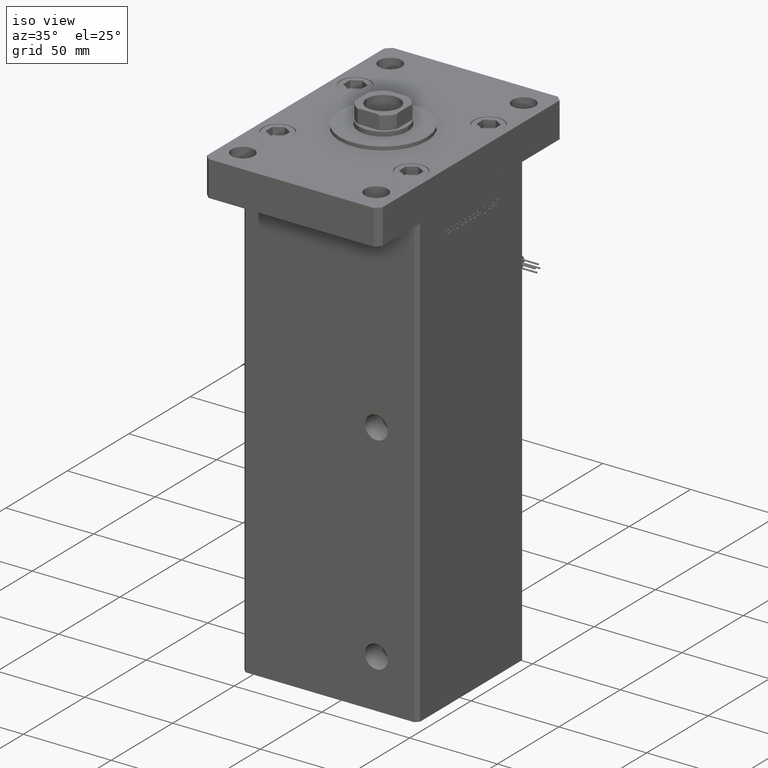
[diagram: clean part render]
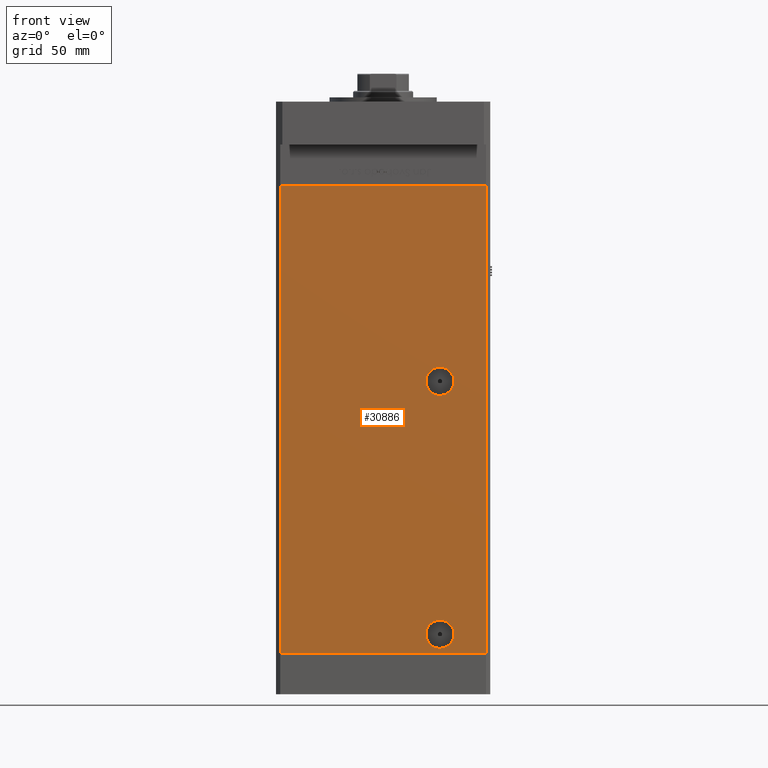
[diagram: tour spotlight — one face highlighted and labeled with its STEP entity id]
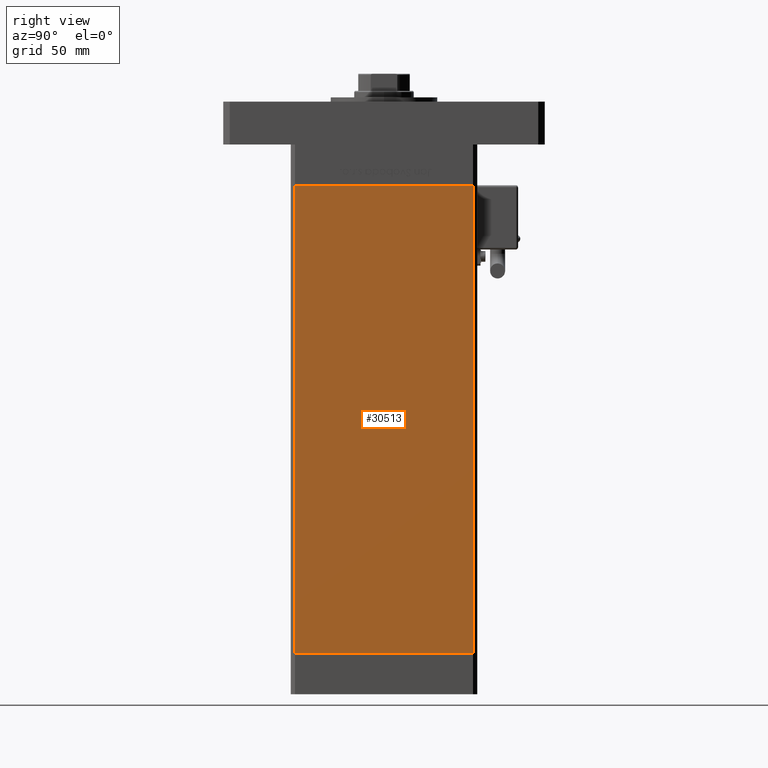
[diagram: tour spotlight — one face highlighted and labeled with its STEP entity id]
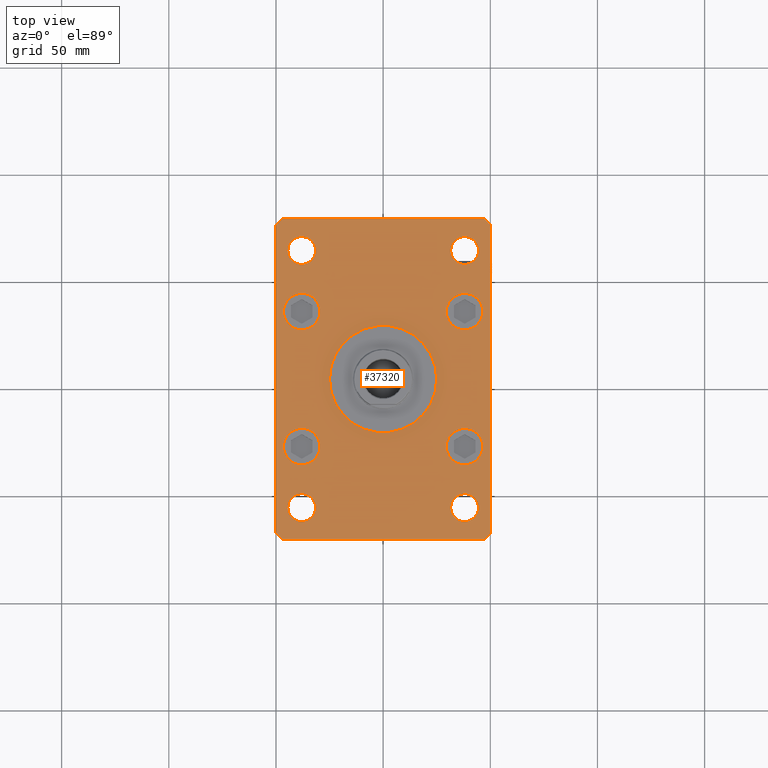
[diagram: tour spotlight — one face highlighted and labeled with its STEP entity id]
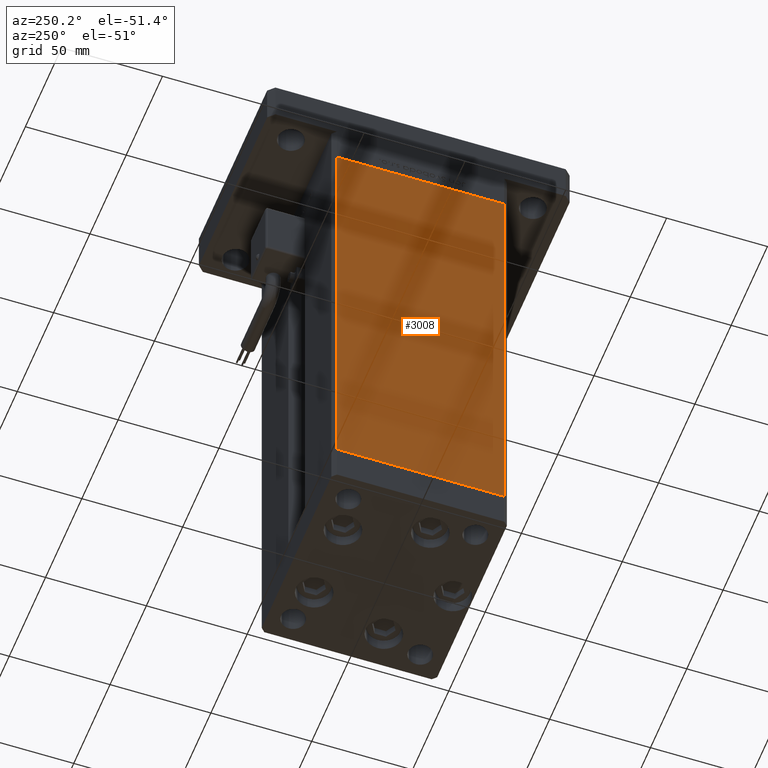
[diagram: tour spotlight — one face highlighted and labeled with its STEP entity id]
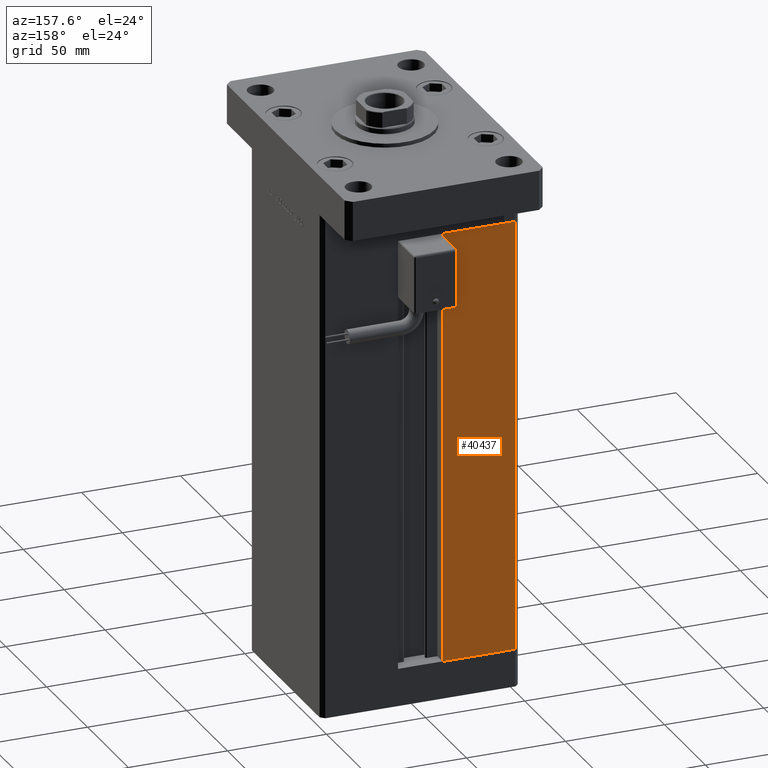
[diagram: tour spotlight — one face highlighted and labeled with its STEP entity id]
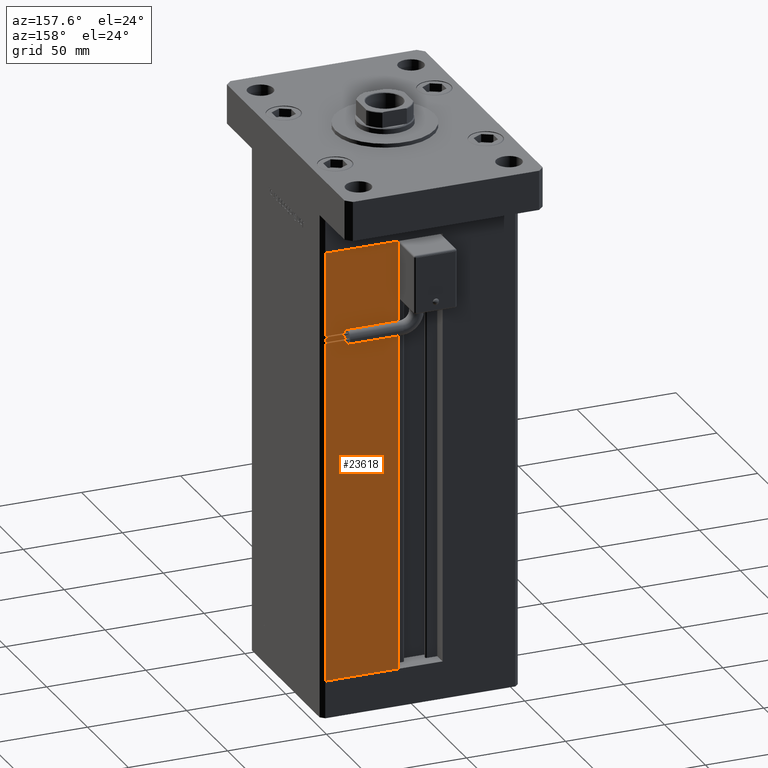
[diagram: tour spotlight — one face highlighted and labeled with its STEP entity id]
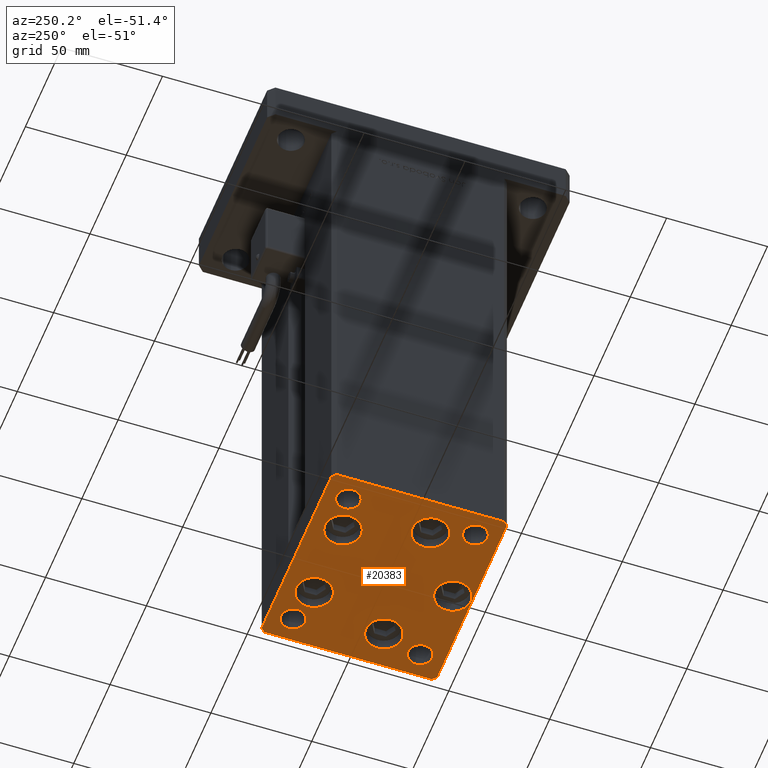
[diagram: tour spotlight — one face highlighted and labeled with its STEP entity id]
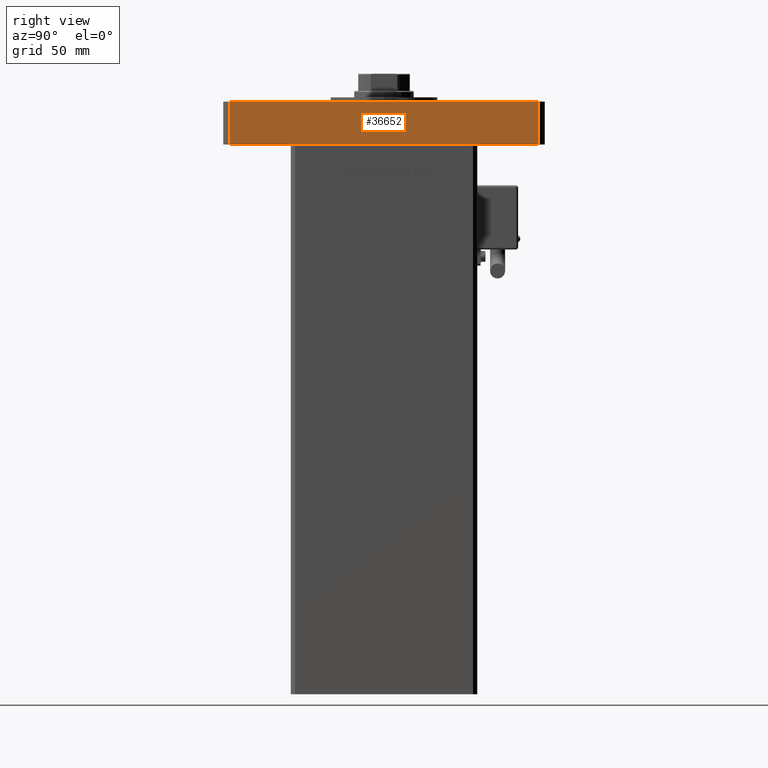
[diagram: tour spotlight — one face highlighted and labeled with its STEP entity id]
A machine part: a face-by-face anatomy tour. The part has 1413 B-rep faces; the first image is the clean iso view, then the 8 largest visible faces are spotlighted one at a time (largest first), each with its STEP entity span.

Face 1 — front view, entity #30886. In plain terms, the highlighted planar face has unit normal (0, 1, 0).
Definition (entity closure, byte-faithful):
#184 = ORIENTED_EDGE ( 'NONE', *, *, #32322, .T. ) ;
#887 = LINE ( 'NONE', #32224, #36219 ) ;
#1118 = VERTEX_POINT ( 'NONE', #1473 ) ;
#1218 = DIRECTION ( 'NONE',  ( -0.000000000000000000, -0.000000000000000000, -1.000000000000000000 ) ) ;
#1473 = CARTESIAN_POINT ( 'NONE',  ( 26.49999999999997513, -43.50000000000000000, 133.5800000000000125 ) ) ;
#2708 = CARTESIAN_POINT ( 'NONE',  ( 26.49999999999997513, -43.50000000000000000, 127.0000000000000000 ) ) ;
#3534 = ORIENTED_EDGE ( 'NONE', *, *, #27824, .F. ) ;
#4024 = AXIS2_PLACEMENT_3D ( 'NONE', #40237, #18399, #39959 ) ;
#5492 = CIRCLE ( 'NONE', #44986, 6.579999999999994742 ) ;
#5668 = DIRECTION ( 'NONE',  ( -0.000000000000000000, 1.000000000000000000, -0.000000000000000000 ) ) ;
#5717 = EDGE_CURVE ( 'NONE', #30959, #53382, #21344, .T. ) ;
#5733 = DIRECTION ( 'NONE',  ( -0.000000000000000000, 1.000000000000000000, -0.000000000000000000 ) ) ;
#6762 = PLANE ( 'NONE',  #32250 ) ;
#8187 = DIRECTION ( 'NONE',  ( -0.000000000000000000, -0.000000000000000000, -1.000000000000000000 ) ) ;
#9205 = CARTESIAN_POINT ( 'NONE',  ( 26.49999999999997513, -43.50000000000000000, 127.0000000000000000 ) ) ;
#10825 = VECTOR ( 'NONE', #8187, 1000.000000000000000 ) ;
#11350 = CARTESIAN_POINT ( 'NONE',  ( 47.99999999999998579, -43.50000000000000000, 218.5000000000000000 ) ) ;
#11367 = DIRECTION ( 'NONE',  ( 0.000000000000000000, -0.000000000000000000, 1.000000000000000000 ) ) ;
#12659 = CARTESIAN_POINT ( 'NONE',  ( 26.49999999999998934, -43.50000000000000000, 9.000000000000007105 ) ) ;
#13219 = EDGE_LOOP ( 'NONE', ( #3534, #42911 ) ) ;
#14550 = VERTEX_POINT ( 'NONE', #30672 ) ;
#15105 = FACE_BOUND ( 'NONE', #13219, .T. ) ;
#15396 = FACE_BOUND ( 'NONE', #16059, .T. ) ;
#15684 = DIRECTION ( 'NONE',  ( 0.000000000000000000, 1.000000000000000000, 0.000000000000000000 ) ) ;
#16059 = EDGE_LOOP ( 'NONE', ( #35911, #184 ) ) ;
#16469 = DIRECTION ( 'NONE',  ( 1.000000000000000000, 0.000000000000000000, 0.000000000000000000 ) ) ;
#18399 = DIRECTION ( 'NONE',  ( 0.000000000000000000, -1.000000000000000000, 0.000000000000000000 ) ) ;
#18519 = EDGE_CURVE ( 'NONE', #33813, #53382, #47589, .T. ) ;
#20008 = VERTEX_POINT ( 'NONE', #23601 ) ;
#20774 = CARTESIAN_POINT ( 'NONE',  ( -47.99999999999998579, -43.50000000000000000, 0.000000000000000000 ) ) ;
#21308 = AXIS2_PLACEMENT_3D ( 'NONE', #2708, #5668, #41811 ) ;
#21311 = CIRCLE ( 'NONE', #53441, 6.579999999999988525 ) ;
#21344 = LINE ( 'NONE', #20774, #54088 ) ;
#22216 = EDGE_CURVE ( 'NONE', #14550, #30959, #27662, .T. ) ;
#23601 = CARTESIAN_POINT ( 'NONE',  ( 26.49999999999998934, -43.50000000000000000, 2.420000000000013252 ) ) ;
#27662 = LINE ( 'NONE', #31983, #36561 ) ;
#27824 = EDGE_CURVE ( 'NONE', #20008, #55834, #5492, .T. ) ;
#29912 = DIRECTION ( 'NONE',  ( 0.000000000000000000, -1.000000000000000000, 0.000000000000000000 ) ) ;
#30672 = CARTESIAN_POINT ( 'NONE',  ( -47.99999999999998579, -43.50000000000000000, 218.5000000000000000 ) ) ;
#30886 = ADVANCED_FACE ( 'NONE', ( #15105, #37237, #15396 ), #6762, .F. ) ;
#30959 = VERTEX_POINT ( 'NONE', #52760 ) ;
#31384 = CIRCLE ( 'NONE', #21308, 6.579999999999988525 ) ;
#31656 = DIRECTION ( 'NONE',  ( 1.000000000000000000, 0.000000000000000000, 0.000000000000000000 ) ) ;
#31983 = CARTESIAN_POINT ( 'NONE',  ( -47.99999999999998579, -43.50000000000000000, 218.5000000000000000 ) ) ;
#32052 = CARTESIAN_POINT ( 'NONE',  ( 26.49999999999997513, -43.50000000000000000, 120.4200000000000159 ) ) ;
#32224 = CARTESIAN_POINT ( 'NONE',  ( -47.99999999999998579, -43.50000000000000000, 218.5000000000000000 ) ) ;
#32250 = AXIS2_PLACEMENT_3D ( 'NONE', #41837, #15684, #11367 ) ;
#32322 = EDGE_CURVE ( 'NONE', #1118, #42496, #21311, .T. ) ;
#32613 = ORIENTED_EDGE ( 'NONE', *, *, #42073, .F. ) ;
#33813 = VERTEX_POINT ( 'NONE', #11350 ) ;
#35911 = ORIENTED_EDGE ( 'NONE', *, *, #36861, .T. ) ;
#36219 = VECTOR ( 'NONE', #31656, 1000.000000000000000 ) ;
#36561 = VECTOR ( 'NONE', #1218, 1000.000000000000000 ) ;
#36861 = EDGE_CURVE ( 'NONE', #42496, #1118, #31384, .T. ) ;
#37237 = FACE_OUTER_BOUND ( 'NONE', #44528, .T. ) ;
#39383 = DIRECTION ( 'NONE',  ( 0.000000000000000000, 0.000000000000000000, -1.000000000000000000 ) ) ;
#39959 = DIRECTION ( 'NONE',  ( 0.000000000000000000, 0.000000000000000000, -1.000000000000000000 ) ) ;
#40237 = CARTESIAN_POINT ( 'NONE',  ( 26.49999999999998934, -43.50000000000000000, 9.000000000000007105 ) ) ;
#40805 = DIRECTION ( 'NONE',  ( 0.000000000000000000, 0.000000000000000000, -1.000000000000000000 ) ) ;
#41811 = DIRECTION ( 'NONE',  ( 0.000000000000000000, 0.000000000000000000, -1.000000000000000000 ) ) ;
#41837 = CARTESIAN_POINT ( 'NONE',  ( -47.99999999999998579, -43.50000000000000000, 218.5000000000000000 ) ) ;
#42073 = EDGE_CURVE ( 'NONE', #14550, #33813, #887, .T. ) ;
#42496 = VERTEX_POINT ( 'NONE', #32052 ) ;
#42566 = CIRCLE ( 'NONE', #4024, 6.579999999999994742 ) ;
#42911 = ORIENTED_EDGE ( 'NONE', *, *, #45845, .F. ) ;
#43398 = CARTESIAN_POINT ( 'NONE',  ( 26.49999999999998934, -43.50000000000000000, 15.58000000000000362 ) ) ;
#43829 = CARTESIAN_POINT ( 'NONE',  ( 47.99999999999998579, -43.50000000000000000, 218.5000000000000000 ) ) ;
#44528 = EDGE_LOOP ( 'NONE', ( #52560, #56882, #32613, #47399 ) ) ;
#44986 = AXIS2_PLACEMENT_3D ( 'NONE', #12659, #29912, #39383 ) ;
#45845 = EDGE_CURVE ( 'NONE', #55834, #20008, #42566, .T. ) ;
#47207 = CARTESIAN_POINT ( 'NONE',  ( 47.99999999999998579, -43.50000000000000000, 0.000000000000000000 ) ) ;
#47399 = ORIENTED_EDGE ( 'NONE', *, *, #22216, .T. ) ;
#47589 = LINE ( 'NONE', #43829, #10825 ) ;
#52560 = ORIENTED_EDGE ( 'NONE', *, *, #5717, .T. ) ;
#52760 = CARTESIAN_POINT ( 'NONE',  ( -47.99999999999998579, -43.50000000000000000, 0.000000000000000000 ) ) ;
#53382 = VERTEX_POINT ( 'NONE', #47207 ) ;
#53441 = AXIS2_PLACEMENT_3D ( 'NONE', #9205, #5733, #40805 ) ;
#54088 = VECTOR ( 'NONE', #16469, 1000.000000000000000 ) ;
#55834 = VERTEX_POINT ( 'NONE', #43398 ) ;
#56882 = ORIENTED_EDGE ( 'NONE', *, *, #18519, .F. ) ;

Face 2 — right view, entity #30513. In plain terms, the highlighted planar face has unit normal (1, -0, 0).
Definition (entity closure, byte-faithful):
#40 = DIRECTION ( 'NONE',  ( -3.344045254895050973E-16, -1.000000000000000000, 0.000000000000000000 ) ) ;
#1006 = AXIS2_PLACEMENT_3D ( 'NONE', #52119, #53235, #8946 ) ;
#4085 = FACE_OUTER_BOUND ( 'NONE', #37843, .T. ) ;
#4089 = LINE ( 'NONE', #51838, #52547 ) ;
#6219 = LINE ( 'NONE', #32679, #23103 ) ;
#8265 = CARTESIAN_POINT ( 'NONE',  ( 49.99999999999998579, -41.49999999999999289, 0.000000000000000000 ) ) ;
#8946 = DIRECTION ( 'NONE',  ( 3.344045254895050480E-16, 1.000000000000000000, 0.000000000000000000 ) ) ;
#13963 = EDGE_CURVE ( 'NONE', #18861, #19069, #4089, .T. ) ;
#15125 = CARTESIAN_POINT ( 'NONE',  ( 50.00000000000001421, 41.49999999999999289, 218.5000000000000000 ) ) ;
#15130 = ORIENTED_EDGE ( 'NONE', *, *, #28549, .F. ) ;
#18861 = VERTEX_POINT ( 'NONE', #39655 ) ;
#19069 = VERTEX_POINT ( 'NONE', #8265 ) ;
#23103 = VECTOR ( 'NONE', #28354, 1000.000000000000000 ) ;
#26250 = CARTESIAN_POINT ( 'NONE',  ( 50.00000000000001421, 41.49999999999999289, 218.5000000000000000 ) ) ;
#28285 = VERTEX_POINT ( 'NONE', #15125 ) ;
#28354 = DIRECTION ( 'NONE',  ( -0.000000000000000000, -0.000000000000000000, -1.000000000000000000 ) ) ;
#28549 = EDGE_CURVE ( 'NONE', #28285, #18861, #36341, .T. ) ;
#30513 = ADVANCED_FACE ( 'NONE', ( #4085 ), #34854, .T. ) ;
#31915 = EDGE_CURVE ( 'NONE', #33031, #19069, #6219, .T. ) ;
#32679 = CARTESIAN_POINT ( 'NONE',  ( 49.99999999999998579, -41.49999999999999289, 218.5000000000000000 ) ) ;
#33031 = VERTEX_POINT ( 'NONE', #52453 ) ;
#34854 = PLANE ( 'NONE',  #1006 ) ;
#35290 = ORIENTED_EDGE ( 'NONE', *, *, #50444, .T. ) ;
#35826 = VECTOR ( 'NONE', #50154, 1000.000000000000000 ) ;
#36341 = LINE ( 'NONE', #55033, #35826 ) ;
#37843 = EDGE_LOOP ( 'NONE', ( #53302, #15130, #35290, #50277 ) ) ;
#39655 = CARTESIAN_POINT ( 'NONE',  ( 50.00000000000001421, 41.49999999999999289, 0.000000000000000000 ) ) ;
#39961 = VECTOR ( 'NONE', #43793, 1000.000000000000000 ) ;
#43793 = DIRECTION ( 'NONE',  ( -3.344045254895050973E-16, -1.000000000000000000, 0.000000000000000000 ) ) ;
#50154 = DIRECTION ( 'NONE',  ( -0.000000000000000000, -0.000000000000000000, -1.000000000000000000 ) ) ;
#50277 = ORIENTED_EDGE ( 'NONE', *, *, #31915, .T. ) ;
#50444 = EDGE_CURVE ( 'NONE', #28285, #33031, #51872, .T. ) ;
#51838 = CARTESIAN_POINT ( 'NONE',  ( 50.00000000000001421, 41.49999999999999289, 0.000000000000000000 ) ) ;
#51872 = LINE ( 'NONE', #26250, #39961 ) ;
#52119 = CARTESIAN_POINT ( 'NONE',  ( 50.00000000000001421, 41.49999999999999289, 218.5000000000000000 ) ) ;
#52453 = CARTESIAN_POINT ( 'NONE',  ( 49.99999999999998579, -41.49999999999999289, 218.5000000000000000 ) ) ;
#52547 = VECTOR ( 'NONE', #40, 1000.000000000000000 ) ;
#53235 = DIRECTION ( 'NONE',  ( 1.000000000000000000, -3.344045254895050480E-16, 0.000000000000000000 ) ) ;
#53302 = ORIENTED_EDGE ( 'NONE', *, *, #13963, .F. ) ;
#55033 = CARTESIAN_POINT ( 'NONE',  ( 50.00000000000001421, 41.49999999999999289, 218.5000000000000000 ) ) ;

Face 3 — top view, entity #37320. In plain terms, the highlighted planar face has unit normal (0, 0, 1).
Definition (entity closure, byte-faithful):
#172 = EDGE_LOOP ( 'NONE', ( #37659, #3622 ) ) ;
#284 = LINE ( 'NONE', #52924, #16629 ) ;
#669 = DIRECTION ( 'NONE',  ( -0.7071067811865426878, 0.7071067811865524577, 0.000000000000000000 ) ) ;
#1491 = FACE_BOUND ( 'NONE', #55534, .T. ) ;
#1741 = VECTOR ( 'NONE', #22080, 1000.000000000000000 ) ;
#1861 = CARTESIAN_POINT ( 'NONE',  ( -50.00000000000001421, 72.00000000000000000, 20.00000000000000000 ) ) ;
#2024 = CARTESIAN_POINT ( 'NONE',  ( -47.00000000000002842, 75.00000000000000000, 20.00000000000000000 ) ) ;
#2485 = AXIS2_PLACEMENT_3D ( 'NONE', #26788, #5776, #35707 ) ;
#2814 = LINE ( 'NONE', #29262, #29226 ) ;
#2858 = CIRCLE ( 'NONE', #29499, 8.499999999999992895 ) ;
#3622 = ORIENTED_EDGE ( 'NONE', *, *, #28950, .F. ) ;
#3637 = CARTESIAN_POINT ( 'NONE',  ( 37.99999999999999289, 31.49999999999999289, 20.00000000000000000 ) ) ;
#4156 = CARTESIAN_POINT ( 'NONE',  ( 37.99999999999997868, -60.00000000000000711, 20.00000000000000000 ) ) ;
#5079 = VERTEX_POINT ( 'NONE', #20905 ) ;
#5514 = CARTESIAN_POINT ( 'NONE',  ( -37.99999999999999289, 59.99999999999999289, 20.00000000000000000 ) ) ;
#5515 = EDGE_CURVE ( 'NONE', #44706, #35821, #53585, .T. ) ;
#5600 = CIRCLE ( 'NONE', #16667, 6.499999999999999112 ) ;
#5776 = DIRECTION ( 'NONE',  ( 0.000000000000000000, 0.000000000000000000, 1.000000000000000000 ) ) ;
#5929 = VECTOR ( 'NONE', #19578, 1000.000000000000114 ) ;
#6222 = CARTESIAN_POINT ( 'NONE',  ( 37.99999999999999289, -31.49999999999999289, 20.00000000000000000 ) ) ;
#6340 = VECTOR ( 'NONE', #9849, 1000.000000000000114 ) ;
#6445 = DIRECTION ( 'NONE',  ( 0.7071067811865459074, 0.7071067811865491270, 0.000000000000000000 ) ) ;
#6541 = CIRCLE ( 'NONE', #17575, 6.499999999999999112 ) ;
#6627 = CIRCLE ( 'NONE', #13978, 8.500000000000000000 ) ;
#6881 = EDGE_CURVE ( 'NONE', #23689, #30993, #8206, .T. ) ;
#6890 = EDGE_CURVE ( 'NONE', #18541, #44931, #27122, .T. ) ;
#7085 = DIRECTION ( 'NONE',  ( 1.000000000000000000, 0.000000000000000000, 0.000000000000000000 ) ) ;
#7099 = CIRCLE ( 'NONE', #43843, 6.499999999999999112 ) ;
#7143 = ORIENTED_EDGE ( 'NONE', *, *, #17018, .F. ) ;
#7779 = DIRECTION ( 'NONE',  ( 1.000000000000000000, 0.000000000000000000, 0.000000000000000000 ) ) ;
#8206 = CIRCLE ( 'NONE', #33944, 6.499999999999999112 ) ;
#8293 = DIRECTION ( 'NONE',  ( 1.000000000000000000, 0.000000000000000000, 0.000000000000000000 ) ) ;
#8374 = ORIENTED_EDGE ( 'NONE', *, *, #13393, .F. ) ;
#8477 = AXIS2_PLACEMENT_3D ( 'NONE', #27408, #10140, #23100 ) ;
#8827 = ORIENTED_EDGE ( 'NONE', *, *, #27693, .F. ) ;
#8840 = CARTESIAN_POINT ( 'NONE',  ( 37.99999999999997868, -60.00000000000000711, 20.00000000000000000 ) ) ;
#9300 = DIRECTION ( 'NONE',  ( 0.000000000000000000, 0.000000000000000000, 1.000000000000000000 ) ) ;
#9502 = AXIS2_PLACEMENT_3D ( 'NONE', #29069, #11829, #11255 ) ;
#9677 = ORIENTED_EDGE ( 'NONE', *, *, #54270, .T. ) ;
#9849 = DIRECTION ( 'NONE',  ( 0.7071067811865474617, -0.7071067811865474617, 0.000000000000000000 ) ) ;
#10140 = DIRECTION ( 'NONE',  ( 0.000000000000000000, 0.000000000000000000, 1.000000000000000000 ) ) ;
#10344 = ORIENTED_EDGE ( 'NONE', *, *, #35051, .F. ) ;
#10626 = EDGE_CURVE ( 'NONE', #35821, #35021, #284, .T. ) ;
#10835 = EDGE_CURVE ( 'NONE', #30993, #23689, #5600, .T. ) ;
#11088 = EDGE_CURVE ( 'NONE', #49188, #50023, #6541, .T. ) ;
#11115 = AXIS2_PLACEMENT_3D ( 'NONE', #48719, #9300, #53020 ) ;
#11158 = EDGE_CURVE ( 'NONE', #24548, #15236, #2858, .T. ) ;
#11255 = DIRECTION ( 'NONE',  ( 1.000000000000000000, 0.000000000000000000, 0.000000000000000000 ) ) ;
#11524 = DIRECTION ( 'NONE',  ( 1.000000000000000000, 0.000000000000000000, 0.000000000000000000 ) ) ;
#11593 = VERTEX_POINT ( 'NONE', #28441 ) ;
#11829 = DIRECTION ( 'NONE',  ( 0.000000000000000000, 0.000000000000000000, 1.000000000000000000 ) ) ;
#12588 = VERTEX_POINT ( 'NONE', #52665 ) ;
#13393 = EDGE_CURVE ( 'NONE', #17557, #31802, #6627, .T. ) ;
#13648 = DIRECTION ( 'NONE',  ( 0.000000000000000000, 0.000000000000000000, 1.000000000000000000 ) ) ;
#13719 = EDGE_CURVE ( 'NONE', #24187, #18366, #33278, .T. ) ;
#13978 = AXIS2_PLACEMENT_3D ( 'NONE', #15819, #37664, #45725 ) ;
#14730 = FACE_BOUND ( 'NONE', #42386, .T. ) ;
#15017 = FACE_BOUND ( 'NONE', #44045, .T. ) ;
#15079 = LINE ( 'NONE', #32620, #36344 ) ;
#15236 = VERTEX_POINT ( 'NONE', #24376 ) ;
#15272 = CARTESIAN_POINT ( 'NONE',  ( -38.00000000000000711, -31.50000000000000000, 20.00000000000000000 ) ) ;
#15430 = DIRECTION ( 'NONE',  ( 0.000000000000000000, 0.000000000000000000, 1.000000000000000000 ) ) ;
#15549 = VECTOR ( 'NONE', #669, 1000.000000000000000 ) ;
#15819 = CARTESIAN_POINT ( 'NONE',  ( -38.00000000000000711, -31.50000000000000000, 20.00000000000000000 ) ) ;
#15883 = DIRECTION ( 'NONE',  ( 1.000000000000000000, 0.000000000000000000, -0.000000000000000000 ) ) ;
#15984 = ORIENTED_EDGE ( 'NONE', *, *, #18955, .T. ) ;
#16205 = CARTESIAN_POINT ( 'NONE',  ( 29.49999999999999645, -31.49999999999999289, 20.00000000000000000 ) ) ;
#16253 = CARTESIAN_POINT ( 'NONE',  ( -29.50000000000000711, 31.50000000000000000, 20.00000000000000000 ) ) ;
#16296 = EDGE_CURVE ( 'NONE', #36074, #12588, #18113, .T. ) ;
#16457 = CARTESIAN_POINT ( 'NONE',  ( -31.49999999999999289, 59.99999999999999289, 20.00000000000000000 ) ) ;
#16629 = VECTOR ( 'NONE', #17572, 1000.000000000000000 ) ;
#16667 = AXIS2_PLACEMENT_3D ( 'NONE', #8840, #22089, #17216 ) ;
#16742 = CARTESIAN_POINT ( 'NONE',  ( -25.00000000000000000, 0.000000000000000000, 20.00000000000000000 ) ) ;
#16745 = PLANE ( 'NONE',  #37874 ) ;
#16982 = EDGE_CURVE ( 'NONE', #15236, #24548, #24556, .T. ) ;
#17018 = EDGE_CURVE ( 'NONE', #31802, #17557, #53941, .T. ) ;
#17028 = FACE_BOUND ( 'NONE', #172, .T. ) ;
#17216 = DIRECTION ( 'NONE',  ( 1.000000000000000000, 0.000000000000000000, 0.000000000000000000 ) ) ;
#17221 = AXIS2_PLACEMENT_3D ( 'NONE', #47182, #24457, #7779 ) ;
#17348 = DIRECTION ( 'NONE',  ( 1.000000000000000000, 0.000000000000000000, 0.000000000000000000 ) ) ;
#17557 = VERTEX_POINT ( 'NONE', #31919 ) ;
#17572 = DIRECTION ( 'NONE',  ( 1.000000000000000000, 1.181088324069315250E-15, 0.000000000000000000 ) ) ;
#17575 = AXIS2_PLACEMENT_3D ( 'NONE', #55116, #55691, #37850 ) ;
#17822 = CIRCLE ( 'NONE', #49944, 25.00000000000000000 ) ;
#17899 = CARTESIAN_POINT ( 'NONE',  ( 31.49999999999997868, -60.00000000000000711, 20.00000000000000000 ) ) ;
#18012 = CARTESIAN_POINT ( 'NONE',  ( 25.00000000000000000, 3.061616997868383043E-15, 20.00000000000000000 ) ) ;
#18113 = CIRCLE ( 'NONE', #17221, 8.499999999999992895 ) ;
#18366 = VERTEX_POINT ( 'NONE', #16253 ) ;
#18541 = VERTEX_POINT ( 'NONE', #52758 ) ;
#18955 = EDGE_CURVE ( 'NONE', #44931, #23567, #2814, .T. ) ;
#19041 = FACE_BOUND ( 'NONE', #42699, .T. ) ;
#19280 = EDGE_LOOP ( 'NONE', ( #55236, #39783 ) ) ;
#19578 = DIRECTION ( 'NONE',  ( -0.7071067811865459074, -0.7071067811865491270, 0.000000000000000000 ) ) ;
#19803 = EDGE_CURVE ( 'NONE', #41978, #11593, #40134, .T. ) ;
#20196 = CARTESIAN_POINT ( 'NONE',  ( 0.000000000000000000, 0.000000000000000000, 20.00000000000000000 ) ) ;
#20279 = EDGE_CURVE ( 'NONE', #50023, #49188, #7099, .T. ) ;
#20482 = FACE_BOUND ( 'NONE', #19280, .T. ) ;
#20791 = CARTESIAN_POINT ( 'NONE',  ( -47.00000000000002842, 75.00000000000000000, 20.00000000000000000 ) ) ;
#20905 = CARTESIAN_POINT ( 'NONE',  ( 50.00000000000000000, -71.99999999999988631, 20.00000000000000000 ) ) ;
#21005 = ORIENTED_EDGE ( 'NONE', *, *, #30135, .F. ) ;
#21464 = DIRECTION ( 'NONE',  ( 0.000000000000000000, 0.000000000000000000, 1.000000000000000000 ) ) ;
#21789 = CARTESIAN_POINT ( 'NONE',  ( 50.00000000000000000, -71.99999999999988631, 20.00000000000000000 ) ) ;
#22080 = DIRECTION ( 'NONE',  ( 0.000000000000000000, 1.000000000000000000, 0.000000000000000000 ) ) ;
#22089 = DIRECTION ( 'NONE',  ( 0.000000000000000000, 0.000000000000000000, 1.000000000000000000 ) ) ;
#22136 = ORIENTED_EDGE ( 'NONE', *, *, #11158, .F. ) ;
#22540 = DIRECTION ( 'NONE',  ( 0.000000000000000000, 0.000000000000000000, 1.000000000000000000 ) ) ;
#22777 = CARTESIAN_POINT ( 'NONE',  ( 47.00000000000001421, -74.99999999999988631, 20.00000000000000000 ) ) ;
#22932 = EDGE_CURVE ( 'NONE', #38068, #52366, #30128, .T. ) ;
#23100 = DIRECTION ( 'NONE',  ( 1.000000000000000000, 0.000000000000000000, 0.000000000000000000 ) ) ;
#23567 = VERTEX_POINT ( 'NONE', #20791 ) ;
#23678 = CARTESIAN_POINT ( 'NONE',  ( 31.50000000000000000, 59.99999999999998579, 20.00000000000000000 ) ) ;
#23689 = VERTEX_POINT ( 'NONE', #17899 ) ;
#24187 = VERTEX_POINT ( 'NONE', #50868 ) ;
#24376 = CARTESIAN_POINT ( 'NONE',  ( 46.49999999999998579, -31.49999999999999289, 20.00000000000000000 ) ) ;
#24457 = DIRECTION ( 'NONE',  ( 0.000000000000000000, 0.000000000000000000, 1.000000000000000000 ) ) ;
#24460 = LINE ( 'NONE', #2024, #5929 ) ;
#24548 = VERTEX_POINT ( 'NONE', #16205 ) ;
#24556 = CIRCLE ( 'NONE', #42952, 8.499999999999992895 ) ;
#24742 = ORIENTED_EDGE ( 'NONE', *, *, #19803, .F. ) ;
#25261 = EDGE_CURVE ( 'NONE', #5079, #18541, #35295, .T. ) ;
#25379 = CARTESIAN_POINT ( 'NONE',  ( -31.49999999999997868, -60.00000000000000711, 20.00000000000000000 ) ) ;
#25647 = FACE_BOUND ( 'NONE', #49961, .T. ) ;
#25706 = AXIS2_PLACEMENT_3D ( 'NONE', #32229, #54656, #11524 ) ;
#25747 = AXIS2_PLACEMENT_3D ( 'NONE', #3637, #21464, #37860 ) ;
#25963 = EDGE_LOOP ( 'NONE', ( #50392, #50556 ) ) ;
#26304 = CARTESIAN_POINT ( 'NONE',  ( 38.00000000000000000, 59.99999999999998579, 20.00000000000000000 ) ) ;
#26529 = DIRECTION ( 'NONE',  ( 1.000000000000000000, 0.000000000000000000, 0.000000000000000000 ) ) ;
#26788 = CARTESIAN_POINT ( 'NONE',  ( -37.99999999999997868, -60.00000000000000711, 20.00000000000000000 ) ) ;
#27122 = LINE ( 'NONE', #30593, #15549 ) ;
#27358 = DIRECTION ( 'NONE',  ( 1.000000000000000000, 0.000000000000000000, 0.000000000000000000 ) ) ;
#27408 = CARTESIAN_POINT ( 'NONE',  ( -38.00000000000000711, 31.50000000000000000, 20.00000000000000000 ) ) ;
#27672 = CARTESIAN_POINT ( 'NONE',  ( -49.99999999999998579, -72.00000000000001421, 20.00000000000000000 ) ) ;
#27693 = EDGE_CURVE ( 'NONE', #11593, #41978, #29389, .T. ) ;
#28183 = EDGE_LOOP ( 'NONE', ( #56938, #9677, #33669, #35111, #15984, #55225, #37328, #47121 ) ) ;
#28212 = EDGE_LOOP ( 'NONE', ( #8827, #24742 ) ) ;
#28441 = CARTESIAN_POINT ( 'NONE',  ( -44.49999999999997868, -60.00000000000000711, 20.00000000000000000 ) ) ;
#28553 = CIRCLE ( 'NONE', #11115, 8.500000000000000000 ) ;
#28950 = EDGE_CURVE ( 'NONE', #12588, #36074, #36768, .T. ) ;
#29069 = CARTESIAN_POINT ( 'NONE',  ( -37.99999999999999289, 59.99999999999999289, 20.00000000000000000 ) ) ;
#29226 = VECTOR ( 'NONE', #46529, 1000.000000000000000 ) ;
#29262 = CARTESIAN_POINT ( 'NONE',  ( 47.00000000000002842, 75.00000000000002842, 20.00000000000000000 ) ) ;
#29389 = CIRCLE ( 'NONE', #25706, 6.499999999999999112 ) ;
#29499 = AXIS2_PLACEMENT_3D ( 'NONE', #6222, #15430, #7085 ) ;
#30098 = DIRECTION ( 'NONE',  ( 1.000000000000000000, 0.000000000000000000, 0.000000000000000000 ) ) ;
#30128 = CIRCLE ( 'NONE', #37470, 25.00000000000000000 ) ;
#30135 = EDGE_CURVE ( 'NONE', #18366, #24187, #28553, .T. ) ;
#30233 = FACE_BOUND ( 'NONE', #25963, .T. ) ;
#30593 = CARTESIAN_POINT ( 'NONE',  ( 50.00000000000000000, 72.00000000000001421, 20.00000000000000000 ) ) ;
#30614 = VERTEX_POINT ( 'NONE', #36525 ) ;
#30848 = EDGE_CURVE ( 'NONE', #38471, #44706, #54503, .T. ) ;
#30874 = DIRECTION ( 'NONE',  ( 1.000000000000000000, 0.000000000000000000, 0.000000000000000000 ) ) ;
#30963 = ORIENTED_EDGE ( 'NONE', *, *, #13719, .F. ) ;
#30979 = CARTESIAN_POINT ( 'NONE',  ( 0.000000000000000000, 0.000000000000000000, 20.00000000000000000 ) ) ;
#30993 = VERTEX_POINT ( 'NONE', #36044 ) ;
#31802 = VERTEX_POINT ( 'NONE', #43651 ) ;
#31919 = CARTESIAN_POINT ( 'NONE',  ( -46.50000000000000711, -31.50000000000000000, 20.00000000000000000 ) ) ;
#32229 = CARTESIAN_POINT ( 'NONE',  ( -37.99999999999997868, -60.00000000000000711, 20.00000000000000000 ) ) ;
#32559 = FACE_BOUND ( 'NONE', #28212, .T. ) ;
#32620 = CARTESIAN_POINT ( 'NONE',  ( 47.00000000000001421, -74.99999999999988631, 20.00000000000000000 ) ) ;
#33278 = CIRCLE ( 'NONE', #8477, 8.500000000000000000 ) ;
#33669 = ORIENTED_EDGE ( 'NONE', *, *, #25261, .T. ) ;
#33944 = AXIS2_PLACEMENT_3D ( 'NONE', #4156, #22540, #30874 ) ;
#34318 = CIRCLE ( 'NONE', #9502, 6.499999999999999112 ) ;
#34659 = DIRECTION ( 'NONE',  ( 1.000000000000000000, 0.000000000000000000, 0.000000000000000000 ) ) ;
#34875 = DIRECTION ( 'NONE',  ( 0.000000000000000000, 0.000000000000000000, 1.000000000000000000 ) ) ;
#35021 = VERTEX_POINT ( 'NONE', #22777 ) ;
#35049 = AXIS2_PLACEMENT_3D ( 'NONE', #5514, #40310, #26529 ) ;
#35051 = EDGE_CURVE ( 'NONE', #43208, #30614, #39640, .T. ) ;
#35111 = ORIENTED_EDGE ( 'NONE', *, *, #6890, .T. ) ;
#35295 = LINE ( 'NONE', #21789, #1741 ) ;
#35707 = DIRECTION ( 'NONE',  ( 1.000000000000000000, 0.000000000000000000, 0.000000000000000000 ) ) ;
#35821 = VERTEX_POINT ( 'NONE', #38135 ) ;
#36044 = CARTESIAN_POINT ( 'NONE',  ( 44.49999999999997868, -60.00000000000000711, 20.00000000000000000 ) ) ;
#36074 = VERTEX_POINT ( 'NONE', #50383 ) ;
#36344 = VECTOR ( 'NONE', #6445, 1000.000000000000114 ) ;
#36525 = CARTESIAN_POINT ( 'NONE',  ( -44.49999999999999289, 59.99999999999999289, 20.00000000000000000 ) ) ;
#36768 = CIRCLE ( 'NONE', #25747, 8.499999999999992895 ) ;
#36957 = DIRECTION ( 'NONE',  ( 1.927470528863118802E-16, -1.000000000000000000, 0.000000000000000000 ) ) ;
#37120 = DIRECTION ( 'NONE',  ( 0.000000000000000000, 0.000000000000000000, 1.000000000000000000 ) ) ;
#37320 = ADVANCED_FACE ( 'NONE', ( #1491, #19041, #15017, #14730, #32559, #50108, #30233, #25647, #17028, #20482 ), #16745, .T. ) ;
#37328 = ORIENTED_EDGE ( 'NONE', *, *, #30848, .T. ) ;
#37470 = AXIS2_PLACEMENT_3D ( 'NONE', #38161, #56007, #30098 ) ;
#37598 = ORIENTED_EDGE ( 'NONE', *, *, #46902, .F. ) ;
#37659 = ORIENTED_EDGE ( 'NONE', *, *, #16296, .F. ) ;
#37664 = DIRECTION ( 'NONE',  ( 0.000000000000000000, 0.000000000000000000, 1.000000000000000000 ) ) ;
#37850 = DIRECTION ( 'NONE',  ( 1.000000000000000000, 0.000000000000000000, 0.000000000000000000 ) ) ;
#37860 = DIRECTION ( 'NONE',  ( 1.000000000000000000, 0.000000000000000000, 0.000000000000000000 ) ) ;
#37874 = AXIS2_PLACEMENT_3D ( 'NONE', #20196, #56433, #15883 ) ;
#38068 = VERTEX_POINT ( 'NONE', #18012 ) ;
#38135 = CARTESIAN_POINT ( 'NONE',  ( -47.00000000000000000, -75.00000000000000000, 20.00000000000000000 ) ) ;
#38161 = CARTESIAN_POINT ( 'NONE',  ( 0.000000000000000000, 0.000000000000000000, 20.00000000000000000 ) ) ;
#38376 = CARTESIAN_POINT ( 'NONE',  ( 47.00000000000002842, 75.00000000000002842, 20.00000000000000000 ) ) ;
#38471 = VERTEX_POINT ( 'NONE', #54358 ) ;
#39640 = CIRCLE ( 'NONE', #35049, 6.499999999999999112 ) ;
#39783 = ORIENTED_EDGE ( 'NONE', *, *, #10835, .F. ) ;
#40134 = CIRCLE ( 'NONE', #2485, 6.499999999999999112 ) ;
#40230 = ORIENTED_EDGE ( 'NONE', *, *, #22932, .F. ) ;
#40310 = DIRECTION ( 'NONE',  ( 0.000000000000000000, 0.000000000000000000, 1.000000000000000000 ) ) ;
#40499 = VECTOR ( 'NONE', #36957, 1000.000000000000000 ) ;
#41978 = VERTEX_POINT ( 'NONE', #25379 ) ;
#42386 = EDGE_LOOP ( 'NONE', ( #47398, #10344 ) ) ;
#42699 = EDGE_LOOP ( 'NONE', ( #30963, #21005 ) ) ;
#42952 = AXIS2_PLACEMENT_3D ( 'NONE', #52143, #34875, #17348 ) ;
#43092 = DIRECTION ( 'NONE',  ( 0.000000000000000000, 0.000000000000000000, 1.000000000000000000 ) ) ;
#43208 = VERTEX_POINT ( 'NONE', #16457 ) ;
#43651 = CARTESIAN_POINT ( 'NONE',  ( -29.50000000000000711, -31.50000000000000000, 20.00000000000000000 ) ) ;
#43843 = AXIS2_PLACEMENT_3D ( 'NONE', #26304, #13648, #34659 ) ;
#44045 = EDGE_LOOP ( 'NONE', ( #22136, #50930 ) ) ;
#44706 = VERTEX_POINT ( 'NONE', #47096 ) ;
#44931 = VERTEX_POINT ( 'NONE', #38376 ) ;
#45615 = EDGE_CURVE ( 'NONE', #30614, #43208, #34318, .T. ) ;
#45725 = DIRECTION ( 'NONE',  ( 1.000000000000000000, 0.000000000000000000, 0.000000000000000000 ) ) ;
#46529 = DIRECTION ( 'NONE',  ( -1.000000000000000000, -2.952720810173287140E-16, 0.000000000000000000 ) ) ;
#46902 = EDGE_CURVE ( 'NONE', #52366, #38068, #17822, .T. ) ;
#47096 = CARTESIAN_POINT ( 'NONE',  ( -49.99999999999998579, -72.00000000000001421, 20.00000000000000000 ) ) ;
#47121 = ORIENTED_EDGE ( 'NONE', *, *, #5515, .T. ) ;
#47182 = CARTESIAN_POINT ( 'NONE',  ( 37.99999999999999289, 31.49999999999999289, 20.00000000000000000 ) ) ;
#47398 = ORIENTED_EDGE ( 'NONE', *, *, #45615, .F. ) ;
#47403 = CARTESIAN_POINT ( 'NONE',  ( 44.50000000000000000, 59.99999999999998579, 20.00000000000000000 ) ) ;
#48719 = CARTESIAN_POINT ( 'NONE',  ( -38.00000000000000711, 31.50000000000000000, 20.00000000000000000 ) ) ;
#48836 = EDGE_CURVE ( 'NONE', #23567, #38471, #24460, .T. ) ;
#49188 = VERTEX_POINT ( 'NONE', #23678 ) ;
#49944 = AXIS2_PLACEMENT_3D ( 'NONE', #30979, #43092, #8293 ) ;
#49961 = EDGE_LOOP ( 'NONE', ( #8374, #7143 ) ) ;
#50023 = VERTEX_POINT ( 'NONE', #47403 ) ;
#50108 = FACE_OUTER_BOUND ( 'NONE', #28183, .T. ) ;
#50383 = CARTESIAN_POINT ( 'NONE',  ( 29.49999999999999645, 31.49999999999999289, 20.00000000000000000 ) ) ;
#50392 = ORIENTED_EDGE ( 'NONE', *, *, #11088, .F. ) ;
#50556 = ORIENTED_EDGE ( 'NONE', *, *, #20279, .F. ) ;
#50868 = CARTESIAN_POINT ( 'NONE',  ( -46.50000000000000711, 31.50000000000000000, 20.00000000000000000 ) ) ;
#50930 = ORIENTED_EDGE ( 'NONE', *, *, #16982, .F. ) ;
#52143 = CARTESIAN_POINT ( 'NONE',  ( 37.99999999999999289, -31.49999999999999289, 20.00000000000000000 ) ) ;
#52366 = VERTEX_POINT ( 'NONE', #16742 ) ;
#52665 = CARTESIAN_POINT ( 'NONE',  ( 46.49999999999998579, 31.49999999999999289, 20.00000000000000000 ) ) ;
#52758 = CARTESIAN_POINT ( 'NONE',  ( 50.00000000000000000, 72.00000000000001421, 20.00000000000000000 ) ) ;
#52924 = CARTESIAN_POINT ( 'NONE',  ( -47.00000000000000000, -75.00000000000000000, 20.00000000000000000 ) ) ;
#53020 = DIRECTION ( 'NONE',  ( 1.000000000000000000, 0.000000000000000000, 0.000000000000000000 ) ) ;
#53585 = LINE ( 'NONE', #27672, #6340 ) ;
#53941 = CIRCLE ( 'NONE', #56726, 8.500000000000000000 ) ;
#54270 = EDGE_CURVE ( 'NONE', #35021, #5079, #15079, .T. ) ;
#54358 = CARTESIAN_POINT ( 'NONE',  ( -50.00000000000001421, 72.00000000000000000, 20.00000000000000000 ) ) ;
#54503 = LINE ( 'NONE', #1861, #40499 ) ;
#54656 = DIRECTION ( 'NONE',  ( 0.000000000000000000, 0.000000000000000000, 1.000000000000000000 ) ) ;
#55116 = CARTESIAN_POINT ( 'NONE',  ( 38.00000000000000000, 59.99999999999998579, 20.00000000000000000 ) ) ;
#55225 = ORIENTED_EDGE ( 'NONE', *, *, #48836, .T. ) ;
#55236 = ORIENTED_EDGE ( 'NONE', *, *, #6881, .F. ) ;
#55534 = EDGE_LOOP ( 'NONE', ( #37598, #40230 ) ) ;
#55691 = DIRECTION ( 'NONE',  ( 0.000000000000000000, 0.000000000000000000, 1.000000000000000000 ) ) ;
#56007 = DIRECTION ( 'NONE',  ( 0.000000000000000000, 0.000000000000000000, 1.000000000000000000 ) ) ;
#56433 = DIRECTION ( 'NONE',  ( 0.000000000000000000, 0.000000000000000000, 1.000000000000000000 ) ) ;
#56726 = AXIS2_PLACEMENT_3D ( 'NONE', #15272, #37120, #27358 ) ;
#56938 = ORIENTED_EDGE ( 'NONE', *, *, #10626, .T. ) ;

Face 4 — auxiliary view, entity #3008. In plain terms, the highlighted planar face has unit normal (1, 0, 0).
Definition (entity closure, byte-faithful):
#610 = ORIENTED_EDGE ( 'NONE', *, *, #17364, .F. ) ;
#2417 = DIRECTION ( 'NONE',  ( -3.344045254895050480E-16, 1.000000000000000000, 0.000000000000000000 ) ) ;
#2831 = DIRECTION ( 'NONE',  ( -0.000000000000000000, -0.000000000000000000, -1.000000000000000000 ) ) ;
#3008 = ADVANCED_FACE ( 'NONE', ( #35531 ), #53078, .F. ) ;
#3584 = CARTESIAN_POINT ( 'NONE',  ( -50.00000000000001421, 41.49999999999999289, 0.000000000000000000 ) ) ;
#4357 = EDGE_CURVE ( 'NONE', #30048, #48861, #33485, .T. ) ;
#6736 = CARTESIAN_POINT ( 'NONE',  ( -50.00000000000001421, 41.49999999999999289, 0.000000000000000000 ) ) ;
#8688 = EDGE_CURVE ( 'NONE', #55084, #18830, #55391, .T. ) ;
#9460 = ORIENTED_EDGE ( 'NONE', *, *, #11177, .T. ) ;
#10655 = CARTESIAN_POINT ( 'NONE',  ( -49.99999999999998579, -41.49999999999999289, 0.000000000000000000 ) ) ;
#11177 = EDGE_CURVE ( 'NONE', #55084, #30048, #20886, .T. ) ;
#11346 = CARTESIAN_POINT ( 'NONE',  ( -50.00000000000001421, 41.49999999999999289, 218.5000000000000000 ) ) ;
#11633 = DIRECTION ( 'NONE',  ( 3.344045254895050973E-16, -1.000000000000000000, 0.000000000000000000 ) ) ;
#11968 = DIRECTION ( 'NONE',  ( 3.344045254895050973E-16, -1.000000000000000000, 0.000000000000000000 ) ) ;
#12546 = CARTESIAN_POINT ( 'NONE',  ( -50.00000000000001421, 41.49999999999999289, 218.5000000000000000 ) ) ;
#15952 = DIRECTION ( 'NONE',  ( 1.000000000000000000, 3.344045254895050480E-16, -0.000000000000000000 ) ) ;
#17364 = EDGE_CURVE ( 'NONE', #18830, #48861, #24978, .T. ) ;
#18371 = CARTESIAN_POINT ( 'NONE',  ( -49.99999999999998579, -41.49999999999999289, 218.5000000000000000 ) ) ;
#18830 = VERTEX_POINT ( 'NONE', #18371 ) ;
#20886 = LINE ( 'NONE', #12546, #54287 ) ;
#24978 = LINE ( 'NONE', #41931, #46607 ) ;
#26895 = ORIENTED_EDGE ( 'NONE', *, *, #8688, .F. ) ;
#30048 = VERTEX_POINT ( 'NONE', #3584 ) ;
#33485 = LINE ( 'NONE', #6736, #52351 ) ;
#34522 = ORIENTED_EDGE ( 'NONE', *, *, #4357, .T. ) ;
#34856 = AXIS2_PLACEMENT_3D ( 'NONE', #11346, #15952, #2417 ) ;
#35531 = FACE_OUTER_BOUND ( 'NONE', #35561, .T. ) ;
#35561 = EDGE_LOOP ( 'NONE', ( #34522, #610, #26895, #9460 ) ) ;
#36372 = CARTESIAN_POINT ( 'NONE',  ( -50.00000000000001421, 41.49999999999999289, 218.5000000000000000 ) ) ;
#38421 = DIRECTION ( 'NONE',  ( -0.000000000000000000, -0.000000000000000000, -1.000000000000000000 ) ) ;
#41931 = CARTESIAN_POINT ( 'NONE',  ( -49.99999999999998579, -41.49999999999999289, 218.5000000000000000 ) ) ;
#44122 = VECTOR ( 'NONE', #11968, 1000.000000000000000 ) ;
#46472 = CARTESIAN_POINT ( 'NONE',  ( -50.00000000000001421, 41.49999999999999289, 218.5000000000000000 ) ) ;
#46607 = VECTOR ( 'NONE', #2831, 1000.000000000000000 ) ;
#48861 = VERTEX_POINT ( 'NONE', #10655 ) ;
#52351 = VECTOR ( 'NONE', #11633, 1000.000000000000000 ) ;
#53078 = PLANE ( 'NONE',  #34856 ) ;
#54287 = VECTOR ( 'NONE', #38421, 1000.000000000000000 ) ;
#55084 = VERTEX_POINT ( 'NONE', #36372 ) ;
#55391 = LINE ( 'NONE', #46472, #44122 ) ;

Face 5 — auxiliary view, entity #40437. In plain terms, the highlighted planar face has unit normal (0, -1, 0).
Definition (entity closure, byte-faithful):
#289 = CARTESIAN_POINT ( 'NONE',  ( -11.24999999999999822, 43.50000000000000000, 0.000000000000000000 ) ) ;
#2235 = ORIENTED_EDGE ( 'NONE', *, *, #51826, .T. ) ;
#2344 = ORIENTED_EDGE ( 'NONE', *, *, #24691, .F. ) ;
#6030 = CARTESIAN_POINT ( 'NONE',  ( -11.24999999999999822, 43.50000000000000000, 218.5000000000000000 ) ) ;
#7069 = CARTESIAN_POINT ( 'NONE',  ( -11.24999999999999822, 43.50000000000000000, 0.000000000000000000 ) ) ;
#8663 = VERTEX_POINT ( 'NONE', #7069 ) ;
#9816 = LINE ( 'NONE', #27362, #49513 ) ;
#10186 = VECTOR ( 'NONE', #14298, 1000.000000000000000 ) ;
#11020 = EDGE_CURVE ( 'NONE', #48162, #46598, #18614, .T. ) ;
#12273 = AXIS2_PLACEMENT_3D ( 'NONE', #6030, #32773, #19265 ) ;
#12410 = DIRECTION ( 'NONE',  ( -1.000000000000000000, 0.000000000000000000, 0.000000000000000000 ) ) ;
#14298 = DIRECTION ( 'NONE',  ( 1.000000000000000000, 0.000000000000000000, 0.000000000000000000 ) ) ;
#14664 = FACE_OUTER_BOUND ( 'NONE', #17813, .T. ) ;
#15174 = DIRECTION ( 'NONE',  ( -0.000000000000000000, -0.000000000000000000, 1.000000000000000000 ) ) ;
#15274 = EDGE_CURVE ( 'NONE', #8663, #46598, #28102, .T. ) ;
#17813 = EDGE_LOOP ( 'NONE', ( #30648, #47446, #2235, #2344 ) ) ;
#18332 = CARTESIAN_POINT ( 'NONE',  ( -11.24999999999999822, 43.50000000000000000, 218.5000000000000000 ) ) ;
#18614 = LINE ( 'NONE', #18332, #10186 ) ;
#19265 = DIRECTION ( 'NONE',  ( 0.000000000000000000, -0.000000000000000000, -1.000000000000000000 ) ) ;
#21020 = VERTEX_POINT ( 'NONE', #45852 ) ;
#21034 = CARTESIAN_POINT ( 'NONE',  ( -11.24999999999999822, 43.50000000000000000, 218.5000000000000000 ) ) ;
#22059 = CARTESIAN_POINT ( 'NONE',  ( -48.00000000000000711, 43.50000000000000000, 218.5000000000000000 ) ) ;
#24691 = EDGE_CURVE ( 'NONE', #48162, #21020, #9816, .T. ) ;
#27362 = CARTESIAN_POINT ( 'NONE',  ( -48.00000000000000711, 43.50000000000000000, 218.5000000000000000 ) ) ;
#27874 = PLANE ( 'NONE',  #12273 ) ;
#28102 = LINE ( 'NONE', #50555, #32755 ) ;
#30648 = ORIENTED_EDGE ( 'NONE', *, *, #11020, .T. ) ;
#32242 = DIRECTION ( 'NONE',  ( -0.000000000000000000, -0.000000000000000000, -1.000000000000000000 ) ) ;
#32755 = VECTOR ( 'NONE', #15174, 1000.000000000000000 ) ;
#32773 = DIRECTION ( 'NONE',  ( 0.000000000000000000, -1.000000000000000000, 0.000000000000000000 ) ) ;
#35412 = VECTOR ( 'NONE', #12410, 1000.000000000000000 ) ;
#40437 = ADVANCED_FACE ( 'NONE', ( #14664 ), #27874, .F. ) ;
#45852 = CARTESIAN_POINT ( 'NONE',  ( -48.00000000000000711, 43.50000000000000000, 0.000000000000000000 ) ) ;
#46598 = VERTEX_POINT ( 'NONE', #21034 ) ;
#47446 = ORIENTED_EDGE ( 'NONE', *, *, #15274, .F. ) ;
#48162 = VERTEX_POINT ( 'NONE', #22059 ) ;
#49513 = VECTOR ( 'NONE', #32242, 1000.000000000000000 ) ;
#50555 = CARTESIAN_POINT ( 'NONE',  ( -11.24999999999999822, 43.50000000000000000, 0.000000000000000000 ) ) ;
#51808 = LINE ( 'NONE', #289, #35412 ) ;
#51826 = EDGE_CURVE ( 'NONE', #8663, #21020, #51808, .T. ) ;

Face 6 — auxiliary view, entity #23618. In plain terms, the highlighted planar face has unit normal (0, -1, 0).
Definition (entity closure, byte-faithful):
#2677 = PLANE ( 'NONE',  #37509 ) ;
#3467 = CARTESIAN_POINT ( 'NONE',  ( 11.24999999999999822, 43.50000000000000000, 0.000000000000000000 ) ) ;
#3539 = DIRECTION ( 'NONE',  ( 0.000000000000000000, -1.000000000000000000, 0.000000000000000000 ) ) ;
#4993 = EDGE_CURVE ( 'NONE', #15348, #37785, #53432, .T. ) ;
#6632 = DIRECTION ( 'NONE',  ( -0.000000000000000000, -0.000000000000000000, 1.000000000000000000 ) ) ;
#8051 = EDGE_CURVE ( 'NONE', #37785, #54432, #55811, .T. ) ;
#8861 = CARTESIAN_POINT ( 'NONE',  ( 11.24999999999999822, 43.50000000000000000, 0.000000000000000000 ) ) ;
#11887 = FACE_OUTER_BOUND ( 'NONE', #23537, .T. ) ;
#14966 = VECTOR ( 'NONE', #15041, 1000.000000000000000 ) ;
#15041 = DIRECTION ( 'NONE',  ( -0.000000000000000000, -0.000000000000000000, -1.000000000000000000 ) ) ;
#15348 = VERTEX_POINT ( 'NONE', #47381 ) ;
#15420 = DIRECTION ( 'NONE',  ( 1.000000000000000000, 0.000000000000000000, 0.000000000000000000 ) ) ;
#15540 = ORIENTED_EDGE ( 'NONE', *, *, #8051, .T. ) ;
#19357 = CARTESIAN_POINT ( 'NONE',  ( 48.00000000000000711, 43.50000000000000000, 218.5000000000000000 ) ) ;
#19374 = CARTESIAN_POINT ( 'NONE',  ( 48.00000000000000711, 43.50000000000000000, 218.5000000000000000 ) ) ;
#23537 = EDGE_LOOP ( 'NONE', ( #24173, #15540, #23543, #38531 ) ) ;
#23543 = ORIENTED_EDGE ( 'NONE', *, *, #34431, .T. ) ;
#23618 = ADVANCED_FACE ( 'NONE', ( #11887 ), #2677, .F. ) ;
#24173 = ORIENTED_EDGE ( 'NONE', *, *, #4993, .T. ) ;
#27442 = VECTOR ( 'NONE', #40471, 1000.000000000000000 ) ;
#28552 = VERTEX_POINT ( 'NONE', #19374 ) ;
#29124 = CARTESIAN_POINT ( 'NONE',  ( -11.24999999999999822, 43.50000000000000000, 218.5000000000000000 ) ) ;
#31452 = LINE ( 'NONE', #19357, #14966 ) ;
#33034 = VECTOR ( 'NONE', #6632, 1000.000000000000000 ) ;
#34431 = EDGE_CURVE ( 'NONE', #54432, #28552, #55680, .T. ) ;
#36971 = VECTOR ( 'NONE', #15420, 1000.000000000000000 ) ;
#37509 = AXIS2_PLACEMENT_3D ( 'NONE', #29124, #3539, #38325 ) ;
#37785 = VERTEX_POINT ( 'NONE', #8861 ) ;
#38325 = DIRECTION ( 'NONE',  ( 0.000000000000000000, -0.000000000000000000, -1.000000000000000000 ) ) ;
#38531 = ORIENTED_EDGE ( 'NONE', *, *, #39342, .T. ) ;
#39342 = EDGE_CURVE ( 'NONE', #28552, #15348, #31452, .T. ) ;
#39489 = CARTESIAN_POINT ( 'NONE',  ( 11.24999999999999112, 43.50000000000000000, 218.5000000000000000 ) ) ;
#40471 = DIRECTION ( 'NONE',  ( -1.000000000000000000, 0.000000000000000000, 0.000000000000000000 ) ) ;
#47055 = CARTESIAN_POINT ( 'NONE',  ( -11.24999999999999822, 43.50000000000000000, 218.5000000000000000 ) ) ;
#47381 = CARTESIAN_POINT ( 'NONE',  ( 48.00000000000000711, 43.50000000000000000, 0.000000000000000000 ) ) ;
#49118 = CARTESIAN_POINT ( 'NONE',  ( -11.24999999999999822, 43.50000000000000000, 0.000000000000000000 ) ) ;
#53432 = LINE ( 'NONE', #49118, #27442 ) ;
#54432 = VERTEX_POINT ( 'NONE', #39489 ) ;
#55680 = LINE ( 'NONE', #47055, #36971 ) ;
#55811 = LINE ( 'NONE', #3467, #33034 ) ;

Face 7 — auxiliary view, entity #20383. In plain terms, the highlighted planar face has unit normal (0, 0, -1).
Definition (entity closure, byte-faithful):
#28 = CARTESIAN_POINT ( 'NONE',  ( 38.00000000000000000, -31.49999999999999289, 0.000000000000000000 ) ) ;
#131 = FACE_OUTER_BOUND ( 'NONE', #663, .T. ) ;
#411 = DIRECTION ( 'NONE',  ( 0.000000000000000000, -0.000000000000000000, -1.000000000000000000 ) ) ;
#663 = EDGE_LOOP ( 'NONE', ( #52333, #7909, #31510, #6411, #29690, #13234, #41250, #51052 ) ) ;
#1259 = VERTEX_POINT ( 'NONE', #37707 ) ;
#1292 = DIRECTION ( 'NONE',  ( 1.000000000000000000, 0.000000000000000000, 0.000000000000000000 ) ) ;
#1345 = DIRECTION ( 'NONE',  ( 0.000000000000000000, -0.000000000000000000, -1.000000000000000000 ) ) ;
#1467 = DIRECTION ( 'NONE',  ( 1.000000000000000000, 0.000000000000000000, 0.000000000000000000 ) ) ;
#1478 = AXIS2_PLACEMENT_3D ( 'NONE', #56653, #53164, #17256 ) ;
#2195 = CARTESIAN_POINT ( 'NONE',  ( 32.05550741379015278, -11.33333333333333037, 0.000000000000000000 ) ) ;
#2301 = CARTESIAN_POINT ( 'NONE',  ( -48.00000000000000711, 43.49999999999996447, 0.000000000000000000 ) ) ;
#2734 = LINE ( 'NONE', #20288, #42363 ) ;
#2852 = CARTESIAN_POINT ( 'NONE',  ( -19.82068048781373903, 27.62499999999999645, 0.000000000000000000 ) ) ;
#2913 = VECTOR ( 'NONE', #32748, 1000.000000000000114 ) ;
#2923 = EDGE_CURVE ( 'NONE', #42061, #22017, #28421, .T. ) ;
#3074 = CIRCLE ( 'NONE', #14107, 5.999999999999998224 ) ;
#3265 = CARTESIAN_POINT ( 'NONE',  ( 50.00000000000000000, -41.49999999999999289, 0.000000000000000000 ) ) ;
#3718 = DIRECTION ( 'NONE',  ( -0.7071067811865463515, -0.7071067811865487940, 0.000000000000000000 ) ) ;
#3809 = CIRCLE ( 'NONE', #34104, 9.000000000000000000 ) ;
#4215 = EDGE_CURVE ( 'NONE', #34375, #26208, #53147, .T. ) ;
#4414 = CARTESIAN_POINT ( 'NONE',  ( 32.05550741379015278, -11.33333333333333037, 0.000000000000000000 ) ) ;
#4437 = CARTESIAN_POINT ( 'NONE',  ( 44.00000000000000000, -31.49999999999999289, 0.000000000000000000 ) ) ;
#4849 = CARTESIAN_POINT ( 'NONE',  ( 23.05550741379014923, -11.33333333333333037, 0.000000000000000000 ) ) ;
#5450 = CARTESIAN_POINT ( 'NONE',  ( 10.82068048781373193, 27.62500000000000000, 0.000000000000000000 ) ) ;
#5521 = CARTESIAN_POINT ( 'NONE',  ( -23.05550741379014923, -11.33333333333333748, 0.000000000000000000 ) ) ;
#5611 = CARTESIAN_POINT ( 'NONE',  ( 38.00000000000000000, 31.49999999999999289, 0.000000000000000000 ) ) ;
#5665 = CARTESIAN_POINT ( 'NONE',  ( -37.99999999999999289, -31.50000000000000000, 0.000000000000000000 ) ) ;
#5885 = EDGE_CURVE ( 'NONE', #34873, #46178, #7191, .T. ) ;
#6231 = DIRECTION ( 'NONE',  ( 1.000000000000000000, 0.000000000000000000, 0.000000000000000000 ) ) ;
#6411 = ORIENTED_EDGE ( 'NONE', *, *, #5885, .T. ) ;
#7004 = AXIS2_PLACEMENT_3D ( 'NONE', #28, #31643, #40547 ) ;
#7191 = LINE ( 'NONE', #36522, #41224 ) ;
#7351 = VERTEX_POINT ( 'NONE', #52124 ) ;
#7583 = CARTESIAN_POINT ( 'NONE',  ( 38.00000000000000000, 31.49999999999999289, 0.000000000000000000 ) ) ;
#7909 = ORIENTED_EDGE ( 'NONE', *, *, #14024, .T. ) ;
#7999 = ORIENTED_EDGE ( 'NONE', *, *, #19080, .T. ) ;
#8235 = CARTESIAN_POINT ( 'NONE',  ( 4.163799117101000559E-15, -34.00000000000000000, 0.000000000000000000 ) ) ;
#8899 = CARTESIAN_POINT ( 'NONE',  ( 44.00000000000000000, 31.49999999999999289, 0.000000000000000000 ) ) ;
#9020 = CARTESIAN_POINT ( 'NONE',  ( 38.00000000000000000, -31.49999999999999289, 0.000000000000000000 ) ) ;
#9182 = VERTEX_POINT ( 'NONE', #23833 ) ;
#9462 = CARTESIAN_POINT ( 'NONE',  ( 41.05550741379015278, -11.33333333333332860, 0.000000000000000000 ) ) ;
#9470 = CARTESIAN_POINT ( 'NONE',  ( 19.82068048781373193, 27.62500000000000000, 0.000000000000000000 ) ) ;
#10176 = CARTESIAN_POINT ( 'NONE',  ( 49.99999999999992184, 41.49999999999998579, 0.000000000000000000 ) ) ;
#10260 = LINE ( 'NONE', #14865, #31260 ) ;
#10600 = DIRECTION ( 'NONE',  ( 1.000000000000000000, 0.000000000000000000, 0.000000000000000000 ) ) ;
#10890 = DIRECTION ( 'NONE',  ( 0.000000000000000000, -0.000000000000000000, -1.000000000000000000 ) ) ;
#11361 = CIRCLE ( 'NONE', #39801, 8.999999999999998224 ) ;
#11481 = CIRCLE ( 'NONE', #16084, 5.999999999999998224 ) ;
#11549 = CARTESIAN_POINT ( 'NONE',  ( 47.99999999999990763, 43.50000000000000000, 0.000000000000000000 ) ) ;
#11621 = EDGE_CURVE ( 'NONE', #44598, #9182, #3809, .T. ) ;
#12123 = AXIS2_PLACEMENT_3D ( 'NONE', #54323, #10890, #10600 ) ;
#13088 = FACE_BOUND ( 'NONE', #35565, .T. ) ;
#13234 = ORIENTED_EDGE ( 'NONE', *, *, #28931, .T. ) ;
#13410 = ORIENTED_EDGE ( 'NONE', *, *, #32575, .T. ) ;
#13557 = CARTESIAN_POINT ( 'NONE',  ( -47.99999999999999289, -43.50000000000001421, 0.000000000000000000 ) ) ;
#13636 = AXIS2_PLACEMENT_3D ( 'NONE', #38743, #56312, #51988 ) ;
#13650 = DIRECTION ( 'NONE',  ( 1.000000000000000000, 0.000000000000000000, 0.000000000000000000 ) ) ;
#13701 = VERTEX_POINT ( 'NONE', #48431 ) ;
#14024 = EDGE_CURVE ( 'NONE', #24331, #16719, #36528, .T. ) ;
#14107 = AXIS2_PLACEMENT_3D ( 'NONE', #15927, #29429, #55898 ) ;
#14573 = CARTESIAN_POINT ( 'NONE',  ( -37.99999999999999289, -31.50000000000000000, 0.000000000000000000 ) ) ;
#14673 = DIRECTION ( 'NONE',  ( -1.003213576468515193E-15, 1.000000000000000000, 0.000000000000000000 ) ) ;
#14865 = CARTESIAN_POINT ( 'NONE',  ( 47.99999999999990763, 43.50000000000000000, 0.000000000000000000 ) ) ;
#15210 = CARTESIAN_POINT ( 'NONE',  ( -50.00000000000000000, -41.50000000000000000, 0.000000000000000000 ) ) ;
#15290 = CARTESIAN_POINT ( 'NONE',  ( -31.99999999999998579, -31.50000000000000000, 0.000000000000000000 ) ) ;
#15439 = DIRECTION ( 'NONE',  ( 0.000000000000000000, -0.000000000000000000, -1.000000000000000000 ) ) ;
#15927 = CARTESIAN_POINT ( 'NONE',  ( -38.00000000000000000, 31.50000000000000000, 0.000000000000000000 ) ) ;
#16084 = AXIS2_PLACEMENT_3D ( 'NONE', #5611, #23156, #1292 ) ;
#16139 = DIRECTION ( 'NONE',  ( 8.360113137237628665E-17, -1.000000000000000000, 0.000000000000000000 ) ) ;
#16594 = DIRECTION ( 'NONE',  ( 0.000000000000000000, -0.000000000000000000, -1.000000000000000000 ) ) ;
#16719 = VERTEX_POINT ( 'NONE', #40366 ) ;
#16724 = AXIS2_PLACEMENT_3D ( 'NONE', #14573, #32109, #40729 ) ;
#16766 = CIRCLE ( 'NONE', #40618, 6.000000000000005329 ) ;
#16849 = FACE_BOUND ( 'NONE', #49005, .T. ) ;
#17103 = EDGE_CURVE ( 'NONE', #45415, #19566, #42002, .T. ) ;
#17256 = DIRECTION ( 'NONE',  ( 1.000000000000000000, 0.000000000000000000, 0.000000000000000000 ) ) ;
#17304 = CIRCLE ( 'NONE', #39318, 9.000000000000001776 ) ;
#18726 = ORIENTED_EDGE ( 'NONE', *, *, #34944, .F. ) ;
#18743 = AXIS2_PLACEMENT_3D ( 'NONE', #21485, #37881, #39016 ) ;
#19080 = EDGE_CURVE ( 'NONE', #7351, #46397, #40218, .T. ) ;
#19240 = AXIS2_PLACEMENT_3D ( 'NONE', #8235, #16594, #43317 ) ;
#19566 = VERTEX_POINT ( 'NONE', #51286 ) ;
#20288 = CARTESIAN_POINT ( 'NONE',  ( 47.99999999999999289, -43.50000000000001421, 0.000000000000000000 ) ) ;
#20383 = ADVANCED_FACE ( 'NONE', ( #34946, #39531, #26862, #44410, #13088, #30613, #56257, #16849, #131, #47610 ), #36059, .T. ) ;
#20526 = CARTESIAN_POINT ( 'NONE',  ( -50.00000000000000711, 41.49999999999995026, 0.000000000000000000 ) ) ;
#20927 = ORIENTED_EDGE ( 'NONE', *, *, #11621, .T. ) ;
#21485 = CARTESIAN_POINT ( 'NONE',  ( 4.163799117101000559E-15, -34.00000000000000000, 0.000000000000000000 ) ) ;
#21703 = VECTOR ( 'NONE', #3718, 1000.000000000000000 ) ;
#21736 = CIRCLE ( 'NONE', #1478, 9.000000000000000000 ) ;
#21778 = EDGE_LOOP ( 'NONE', ( #13410, #40443 ) ) ;
#22017 = VERTEX_POINT ( 'NONE', #29447 ) ;
#22088 = EDGE_CURVE ( 'NONE', #26208, #34375, #17304, .T. ) ;
#22193 = DIRECTION ( 'NONE',  ( 1.000000000000000000, 0.000000000000000000, 0.000000000000000000 ) ) ;
#22212 = CIRCLE ( 'NONE', #12123, 8.999999999999998224 ) ;
#22244 = DIRECTION ( 'NONE',  ( 1.000000000000000000, 0.000000000000000000, 0.000000000000000000 ) ) ;
#22475 = CARTESIAN_POINT ( 'NONE',  ( -44.00000000000000000, 31.50000000000000000, 0.000000000000000000 ) ) ;
#22700 = VECTOR ( 'NONE', #16139, 1000.000000000000000 ) ;
#22847 = EDGE_CURVE ( 'NONE', #1259, #42089, #42984, .T. ) ;
#23156 = DIRECTION ( 'NONE',  ( -0.000000000000000000, 0.000000000000000000, 1.000000000000000000 ) ) ;
#23267 = DIRECTION ( 'NONE',  ( 0.000000000000000000, -0.000000000000000000, -1.000000000000000000 ) ) ;
#23312 = CARTESIAN_POINT ( 'NONE',  ( 9.000000000000003553, -34.00000000000000000, 0.000000000000000000 ) ) ;
#23666 = ORIENTED_EDGE ( 'NONE', *, *, #45854, .T. ) ;
#23795 = CARTESIAN_POINT ( 'NONE',  ( -38.00000000000000000, 31.50000000000000000, 0.000000000000000000 ) ) ;
#23833 = CARTESIAN_POINT ( 'NONE',  ( -28.82068048781373548, 27.62499999999999645, 0.000000000000000000 ) ) ;
#23848 = LINE ( 'NONE', #55480, #25280 ) ;
#24158 = EDGE_LOOP ( 'NONE', ( #34985, #20927 ) ) ;
#24331 = VERTEX_POINT ( 'NONE', #44977 ) ;
#24413 = EDGE_CURVE ( 'NONE', #46397, #7351, #27413, .T. ) ;
#25280 = VECTOR ( 'NONE', #41369, 1000.000000000000114 ) ;
#25820 = VERTEX_POINT ( 'NONE', #5450 ) ;
#25890 = ORIENTED_EDGE ( 'NONE', *, *, #41667, .T. ) ;
#25891 = ORIENTED_EDGE ( 'NONE', *, *, #2923, .T. ) ;
#26208 = VERTEX_POINT ( 'NONE', #4849 ) ;
#26217 = ORIENTED_EDGE ( 'NONE', *, *, #22088, .T. ) ;
#26342 = EDGE_LOOP ( 'NONE', ( #26217, #50724 ) ) ;
#26372 = EDGE_CURVE ( 'NONE', #30677, #30964, #27492, .T. ) ;
#26862 = FACE_BOUND ( 'NONE', #26342, .T. ) ;
#27142 = DIRECTION ( 'NONE',  ( 1.000000000000000000, 0.000000000000000000, 0.000000000000000000 ) ) ;
#27172 = ORIENTED_EDGE ( 'NONE', *, *, #55517, .T. ) ;
#27413 = CIRCLE ( 'NONE', #33873, 9.000000000000001776 ) ;
#27492 = CIRCLE ( 'NONE', #51410, 5.999999999999998224 ) ;
#27701 = DIRECTION ( 'NONE',  ( -0.000000000000000000, 0.000000000000000000, 1.000000000000000000 ) ) ;
#27812 = CARTESIAN_POINT ( 'NONE',  ( -10.82068048781373903, 27.62499999999999645, 0.000000000000000000 ) ) ;
#28421 = CIRCLE ( 'NONE', #19240, 9.000000000000000000 ) ;
#28925 = DIRECTION ( 'NONE',  ( 1.000000000000000000, 0.000000000000000000, 0.000000000000000000 ) ) ;
#28931 = EDGE_CURVE ( 'NONE', #36037, #42145, #10260, .T. ) ;
#29429 = DIRECTION ( 'NONE',  ( -0.000000000000000000, 0.000000000000000000, 1.000000000000000000 ) ) ;
#29447 = CARTESIAN_POINT ( 'NONE',  ( -8.999999999999996447, -34.00000000000000000, 0.000000000000000000 ) ) ;
#29690 = ORIENTED_EDGE ( 'NONE', *, *, #53622, .T. ) ;
#30165 = CARTESIAN_POINT ( 'NONE',  ( -48.00000000000000711, 43.49999999999996447, 0.000000000000000000 ) ) ;
#30613 = FACE_BOUND ( 'NONE', #46455, .T. ) ;
#30677 = VERTEX_POINT ( 'NONE', #55795 ) ;
#30901 = EDGE_CURVE ( 'NONE', #16719, #34873, #2734, .T. ) ;
#30964 = VERTEX_POINT ( 'NONE', #4437 ) ;
#31260 = VECTOR ( 'NONE', #37003, 1000.000000000000000 ) ;
#31490 = EDGE_CURVE ( 'NONE', #25820, #37590, #22212, .T. ) ;
#31510 = ORIENTED_EDGE ( 'NONE', *, *, #30901, .T. ) ;
#31617 = EDGE_CURVE ( 'NONE', #19566, #24331, #37060, .T. ) ;
#31643 = DIRECTION ( 'NONE',  ( 0.000000000000000000, -0.000000000000000000, -1.000000000000000000 ) ) ;
#31870 = EDGE_CURVE ( 'NONE', #13701, #36091, #35053, .T. ) ;
#32109 = DIRECTION ( 'NONE',  ( 0.000000000000000000, -0.000000000000000000, -1.000000000000000000 ) ) ;
#32286 = CIRCLE ( 'NONE', #40530, 5.999999999999998224 ) ;
#32575 = EDGE_CURVE ( 'NONE', #36091, #13701, #16766, .T. ) ;
#32748 = DIRECTION ( 'NONE',  ( 0.7071067811865474617, -0.7071067811865474617, 0.000000000000000000 ) ) ;
#32885 = AXIS2_PLACEMENT_3D ( 'NONE', #23795, #45647, #41318 ) ;
#33873 = AXIS2_PLACEMENT_3D ( 'NONE', #35498, #411, #13650 ) ;
#34104 = AXIS2_PLACEMENT_3D ( 'NONE', #2852, #55198, #54907 ) ;
#34372 = VERTEX_POINT ( 'NONE', #8899 ) ;
#34375 = VERTEX_POINT ( 'NONE', #9462 ) ;
#34873 = VERTEX_POINT ( 'NONE', #3265 ) ;
#34894 = EDGE_LOOP ( 'NONE', ( #43332, #23666 ) ) ;
#34944 = EDGE_CURVE ( 'NONE', #38407, #34372, #32286, .T. ) ;
#34946 = FACE_BOUND ( 'NONE', #24158, .T. ) ;
#34985 = ORIENTED_EDGE ( 'NONE', *, *, #56437, .T. ) ;
#35053 = CIRCLE ( 'NONE', #16724, 6.000000000000005329 ) ;
#35447 = CIRCLE ( 'NONE', #7004, 5.999999999999998224 ) ;
#35498 = CARTESIAN_POINT ( 'NONE',  ( -32.05550741379015278, -11.33333333333333925, 0.000000000000000000 ) ) ;
#35565 = EDGE_LOOP ( 'NONE', ( #7999, #37118 ) ) ;
#36037 = VERTEX_POINT ( 'NONE', #11549 ) ;
#36059 = PLANE ( 'NONE',  #39243 ) ;
#36091 = VERTEX_POINT ( 'NONE', #15290 ) ;
#36522 = CARTESIAN_POINT ( 'NONE',  ( 50.00000000000000000, -41.49999999999999289, 0.000000000000000000 ) ) ;
#36528 = LINE ( 'NONE', #13557, #42620 ) ;
#37003 = DIRECTION ( 'NONE',  ( -1.000000000000000000, -3.614007241618350743E-16, 0.000000000000000000 ) ) ;
#37060 = LINE ( 'NONE', #15210, #2913 ) ;
#37118 = ORIENTED_EDGE ( 'NONE', *, *, #24413, .T. ) ;
#37590 = VERTEX_POINT ( 'NONE', #38225 ) ;
#37695 = CARTESIAN_POINT ( 'NONE',  ( -50.00000000000000711, 41.49999999999995026, 0.000000000000000000 ) ) ;
#37707 = CARTESIAN_POINT ( 'NONE',  ( -32.00000000000000000, 31.50000000000000000, 0.000000000000000000 ) ) ;
#37815 = DIRECTION ( 'NONE',  ( 0.7071067811865463515, 0.7071067811865487940, 0.000000000000000000 ) ) ;
#37881 = DIRECTION ( 'NONE',  ( 0.000000000000000000, -0.000000000000000000, -1.000000000000000000 ) ) ;
#37944 = LINE ( 'NONE', #30165, #21703 ) ;
#38225 = CARTESIAN_POINT ( 'NONE',  ( 28.82068048781372838, 27.62500000000000000, 0.000000000000000000 ) ) ;
#38340 = DIRECTION ( 'NONE',  ( -0.000000000000000000, 0.000000000000000000, 1.000000000000000000 ) ) ;
#38407 = VERTEX_POINT ( 'NONE', #38663 ) ;
#38663 = CARTESIAN_POINT ( 'NONE',  ( 32.00000000000000000, 31.49999999999999289, 0.000000000000000000 ) ) ;
#38743 = CARTESIAN_POINT ( 'NONE',  ( -32.05550741379015278, -11.33333333333333925, 0.000000000000000000 ) ) ;
#39016 = DIRECTION ( 'NONE',  ( 1.000000000000000000, 0.000000000000000000, 0.000000000000000000 ) ) ;
#39243 = AXIS2_PLACEMENT_3D ( 'NONE', #40371, #27701, #27142 ) ;
#39318 = AXIS2_PLACEMENT_3D ( 'NONE', #4414, #48703, #22244 ) ;
#39531 = FACE_BOUND ( 'NONE', #34894, .T. ) ;
#39801 = AXIS2_PLACEMENT_3D ( 'NONE', #9470, #23267, #28925 ) ;
#40218 = CIRCLE ( 'NONE', #13636, 9.000000000000001776 ) ;
#40366 = CARTESIAN_POINT ( 'NONE',  ( 47.99999999999999289, -43.50000000000001421, 0.000000000000000000 ) ) ;
#40371 = CARTESIAN_POINT ( 'NONE',  ( 0.000000000000000000, 0.000000000000000000, 0.000000000000000000 ) ) ;
#40443 = ORIENTED_EDGE ( 'NONE', *, *, #31870, .T. ) ;
#40530 = AXIS2_PLACEMENT_3D ( 'NONE', #7583, #38340, #1467 ) ;
#40547 = DIRECTION ( 'NONE',  ( 1.000000000000000000, 0.000000000000000000, 0.000000000000000000 ) ) ;
#40618 = AXIS2_PLACEMENT_3D ( 'NONE', #5665, #1345, #6231 ) ;
#40729 = DIRECTION ( 'NONE',  ( 1.000000000000000000, 0.000000000000000000, 0.000000000000000000 ) ) ;
#41224 = VECTOR ( 'NONE', #14673, 1000.000000000000000 ) ;
#41250 = ORIENTED_EDGE ( 'NONE', *, *, #55780, .T. ) ;
#41318 = DIRECTION ( 'NONE',  ( 1.000000000000000000, 0.000000000000000000, 0.000000000000000000 ) ) ;
#41369 = DIRECTION ( 'NONE',  ( -0.7071067811865474617, 0.7071067811865474617, 0.000000000000000000 ) ) ;
#41667 = EDGE_CURVE ( 'NONE', #22017, #42061, #50902, .T. ) ;
#42002 = LINE ( 'NONE', #37695, #22700 ) ;
#42061 = VERTEX_POINT ( 'NONE', #23312 ) ;
#42089 = VERTEX_POINT ( 'NONE', #22475 ) ;
#42145 = VERTEX_POINT ( 'NONE', #2301 ) ;
#42363 = VECTOR ( 'NONE', #37815, 1000.000000000000000 ) ;
#42620 = VECTOR ( 'NONE', #22193, 1000.000000000000000 ) ;
#42984 = CIRCLE ( 'NONE', #32885, 5.999999999999998224 ) ;
#43317 = DIRECTION ( 'NONE',  ( 1.000000000000000000, 0.000000000000000000, 0.000000000000000000 ) ) ;
#43332 = ORIENTED_EDGE ( 'NONE', *, *, #31490, .T. ) ;
#44410 = FACE_BOUND ( 'NONE', #56871, .T. ) ;
#44598 = VERTEX_POINT ( 'NONE', #27812 ) ;
#44977 = CARTESIAN_POINT ( 'NONE',  ( -47.99999999999999289, -43.50000000000001421, 0.000000000000000000 ) ) ;
#45415 = VERTEX_POINT ( 'NONE', #20526 ) ;
#45442 = EDGE_CURVE ( 'NONE', #42089, #1259, #3074, .T. ) ;
#45647 = DIRECTION ( 'NONE',  ( -0.000000000000000000, 0.000000000000000000, 1.000000000000000000 ) ) ;
#45743 = ORIENTED_EDGE ( 'NONE', *, *, #53199, .F. ) ;
#45854 = EDGE_CURVE ( 'NONE', #37590, #25820, #11361, .T. ) ;
#46178 = VERTEX_POINT ( 'NONE', #10176 ) ;
#46397 = VERTEX_POINT ( 'NONE', #5521 ) ;
#46455 = EDGE_LOOP ( 'NONE', ( #45743, #18726 ) ) ;
#46716 = AXIS2_PLACEMENT_3D ( 'NONE', #2195, #15439, #50531 ) ;
#47610 = FACE_BOUND ( 'NONE', #21778, .T. ) ;
#48431 = CARTESIAN_POINT ( 'NONE',  ( -44.00000000000000000, -31.50000000000000000, 0.000000000000000000 ) ) ;
#48703 = DIRECTION ( 'NONE',  ( 0.000000000000000000, -0.000000000000000000, -1.000000000000000000 ) ) ;
#49005 = EDGE_LOOP ( 'NONE', ( #53449, #49282 ) ) ;
#49282 = ORIENTED_EDGE ( 'NONE', *, *, #45442, .F. ) ;
#50531 = DIRECTION ( 'NONE',  ( 1.000000000000000000, 0.000000000000000000, 0.000000000000000000 ) ) ;
#50724 = ORIENTED_EDGE ( 'NONE', *, *, #4215, .T. ) ;
#50902 = CIRCLE ( 'NONE', #18743, 9.000000000000000000 ) ;
#51052 = ORIENTED_EDGE ( 'NONE', *, *, #17103, .T. ) ;
#51068 = ORIENTED_EDGE ( 'NONE', *, *, #26372, .T. ) ;
#51286 = CARTESIAN_POINT ( 'NONE',  ( -50.00000000000000000, -41.50000000000000000, 0.000000000000000000 ) ) ;
#51360 = EDGE_LOOP ( 'NONE', ( #27172, #51068 ) ) ;
#51410 = AXIS2_PLACEMENT_3D ( 'NONE', #9020, #56234, #56516 ) ;
#51988 = DIRECTION ( 'NONE',  ( 1.000000000000000000, 0.000000000000000000, 0.000000000000000000 ) ) ;
#52124 = CARTESIAN_POINT ( 'NONE',  ( -41.05550741379015278, -11.33333333333333925, 0.000000000000000000 ) ) ;
#52333 = ORIENTED_EDGE ( 'NONE', *, *, #31617, .T. ) ;
#53147 = CIRCLE ( 'NONE', #46716, 9.000000000000001776 ) ;
#53164 = DIRECTION ( 'NONE',  ( 0.000000000000000000, -0.000000000000000000, -1.000000000000000000 ) ) ;
#53199 = EDGE_CURVE ( 'NONE', #34372, #38407, #11481, .T. ) ;
#53449 = ORIENTED_EDGE ( 'NONE', *, *, #22847, .F. ) ;
#53622 = EDGE_CURVE ( 'NONE', #46178, #36037, #23848, .T. ) ;
#54323 = CARTESIAN_POINT ( 'NONE',  ( 19.82068048781373193, 27.62500000000000000, 0.000000000000000000 ) ) ;
#54907 = DIRECTION ( 'NONE',  ( 1.000000000000000000, 0.000000000000000000, 0.000000000000000000 ) ) ;
#55198 = DIRECTION ( 'NONE',  ( 0.000000000000000000, -0.000000000000000000, -1.000000000000000000 ) ) ;
#55480 = CARTESIAN_POINT ( 'NONE',  ( 49.99999999999992184, 41.49999999999998579, 0.000000000000000000 ) ) ;
#55517 = EDGE_CURVE ( 'NONE', #30964, #30677, #35447, .T. ) ;
#55780 = EDGE_CURVE ( 'NONE', #42145, #45415, #37944, .T. ) ;
#55795 = CARTESIAN_POINT ( 'NONE',  ( 32.00000000000000000, -31.49999999999999289, 0.000000000000000000 ) ) ;
#55898 = DIRECTION ( 'NONE',  ( 1.000000000000000000, 0.000000000000000000, 0.000000000000000000 ) ) ;
#56234 = DIRECTION ( 'NONE',  ( 0.000000000000000000, -0.000000000000000000, -1.000000000000000000 ) ) ;
#56257 = FACE_BOUND ( 'NONE', #51360, .T. ) ;
#56312 = DIRECTION ( 'NONE',  ( 0.000000000000000000, -0.000000000000000000, -1.000000000000000000 ) ) ;
#56437 = EDGE_CURVE ( 'NONE', #9182, #44598, #21736, .T. ) ;
#56516 = DIRECTION ( 'NONE',  ( 1.000000000000000000, 0.000000000000000000, 0.000000000000000000 ) ) ;
#56653 = CARTESIAN_POINT ( 'NONE',  ( -19.82068048781373903, 27.62499999999999645, 0.000000000000000000 ) ) ;
#56871 = EDGE_LOOP ( 'NONE', ( #25890, #25891 ) ) ;

Face 8 — right view, entity #36652. In plain terms, the highlighted planar face has unit normal (-1, 0, 0).
Definition (entity closure, byte-faithful):
#1273 = ORIENTED_EDGE ( 'NONE', *, *, #24299, .T. ) ;
#1741 = VECTOR ( 'NONE', #22080, 1000.000000000000000 ) ;
#2596 = VERTEX_POINT ( 'NONE', #22937 ) ;
#4736 = CARTESIAN_POINT ( 'NONE',  ( 50.00000000000000000, -71.99999999999988631, 0.000000000000000000 ) ) ;
#5079 = VERTEX_POINT ( 'NONE', #20905 ) ;
#7153 = DIRECTION ( 'NONE',  ( -0.000000000000000000, -0.000000000000000000, -1.000000000000000000 ) ) ;
#7778 = VERTEX_POINT ( 'NONE', #41271 ) ;
#11757 = LINE ( 'NONE', #42228, #40536 ) ;
#12835 = PLANE ( 'NONE',  #43343 ) ;
#15074 = LINE ( 'NONE', #32905, #41719 ) ;
#16870 = DIRECTION ( 'NONE',  ( 0.000000000000000000, 0.000000000000000000, 1.000000000000000000 ) ) ;
#17187 = ORIENTED_EDGE ( 'NONE', *, *, #31684, .T. ) ;
#18541 = VERTEX_POINT ( 'NONE', #52758 ) ;
#19669 = DIRECTION ( 'NONE',  ( -0.000000000000000000, -0.000000000000000000, -1.000000000000000000 ) ) ;
#20905 = CARTESIAN_POINT ( 'NONE',  ( 50.00000000000000000, -71.99999999999988631, 20.00000000000000000 ) ) ;
#21789 = CARTESIAN_POINT ( 'NONE',  ( 50.00000000000000000, -71.99999999999988631, 20.00000000000000000 ) ) ;
#22080 = DIRECTION ( 'NONE',  ( 0.000000000000000000, 1.000000000000000000, 0.000000000000000000 ) ) ;
#22937 = CARTESIAN_POINT ( 'NONE',  ( 50.00000000000000000, 72.00000000000001421, 0.000000000000000000 ) ) ;
#24299 = EDGE_CURVE ( 'NONE', #7778, #2596, #31181, .T. ) ;
#25261 = EDGE_CURVE ( 'NONE', #5079, #18541, #35295, .T. ) ;
#26864 = DIRECTION ( 'NONE',  ( 0.000000000000000000, 1.000000000000000000, 0.000000000000000000 ) ) ;
#28263 = ORIENTED_EDGE ( 'NONE', *, *, #51317, .F. ) ;
#31181 = LINE ( 'NONE', #4736, #50376 ) ;
#31684 = EDGE_CURVE ( 'NONE', #5079, #7778, #11757, .T. ) ;
#32905 = CARTESIAN_POINT ( 'NONE',  ( 50.00000000000000000, 72.00000000000001421, 20.00000000000000000 ) ) ;
#35295 = LINE ( 'NONE', #21789, #1741 ) ;
#36652 = ADVANCED_FACE ( 'NONE', ( #38425 ), #12835, .F. ) ;
#38425 = FACE_OUTER_BOUND ( 'NONE', #54653, .T. ) ;
#40536 = VECTOR ( 'NONE', #7153, 1000.000000000000000 ) ;
#41271 = CARTESIAN_POINT ( 'NONE',  ( 50.00000000000000000, -71.99999999999988631, 0.000000000000000000 ) ) ;
#41719 = VECTOR ( 'NONE', #19669, 1000.000000000000000 ) ;
#42166 = DIRECTION ( 'NONE',  ( -1.000000000000000000, 0.000000000000000000, 0.000000000000000000 ) ) ;
#42228 = CARTESIAN_POINT ( 'NONE',  ( 50.00000000000000000, -71.99999999999988631, 20.00000000000000000 ) ) ;
#43343 = AXIS2_PLACEMENT_3D ( 'NONE', #51955, #42166, #16870 ) ;
#50376 = VECTOR ( 'NONE', #26864, 1000.000000000000000 ) ;
#51317 = EDGE_CURVE ( 'NONE', #18541, #2596, #15074, .T. ) ;
#51930 = ORIENTED_EDGE ( 'NONE', *, *, #25261, .F. ) ;
#51955 = CARTESIAN_POINT ( 'NONE',  ( 50.00000000000000000, -71.99999999999988631, 20.00000000000000000 ) ) ;
#52758 = CARTESIAN_POINT ( 'NONE',  ( 50.00000000000000000, 72.00000000000001421, 20.00000000000000000 ) ) ;
#54653 = EDGE_LOOP ( 'NONE', ( #1273, #28263, #51930, #17187 ) ) ;